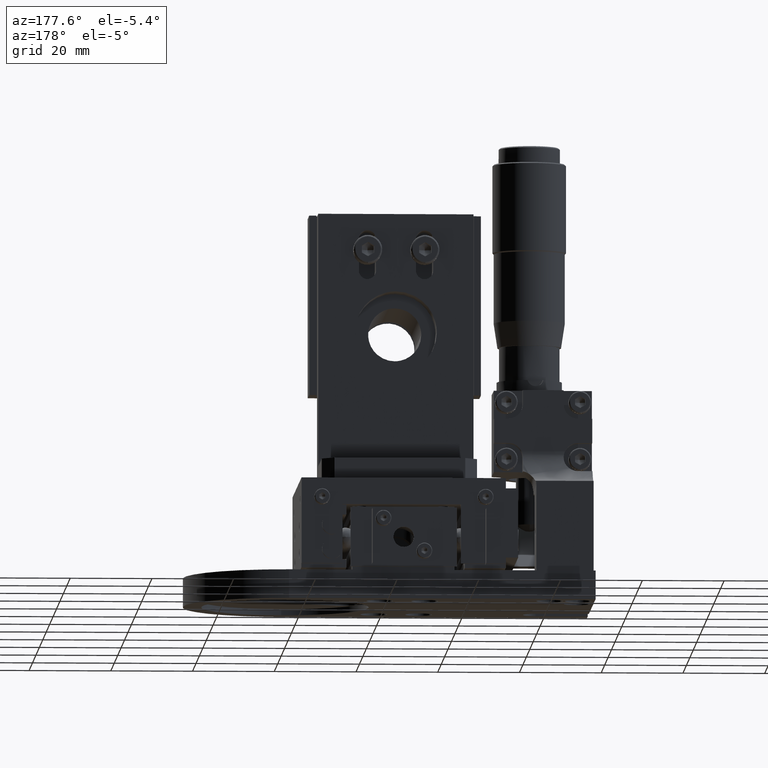
[diagram: clean part render]
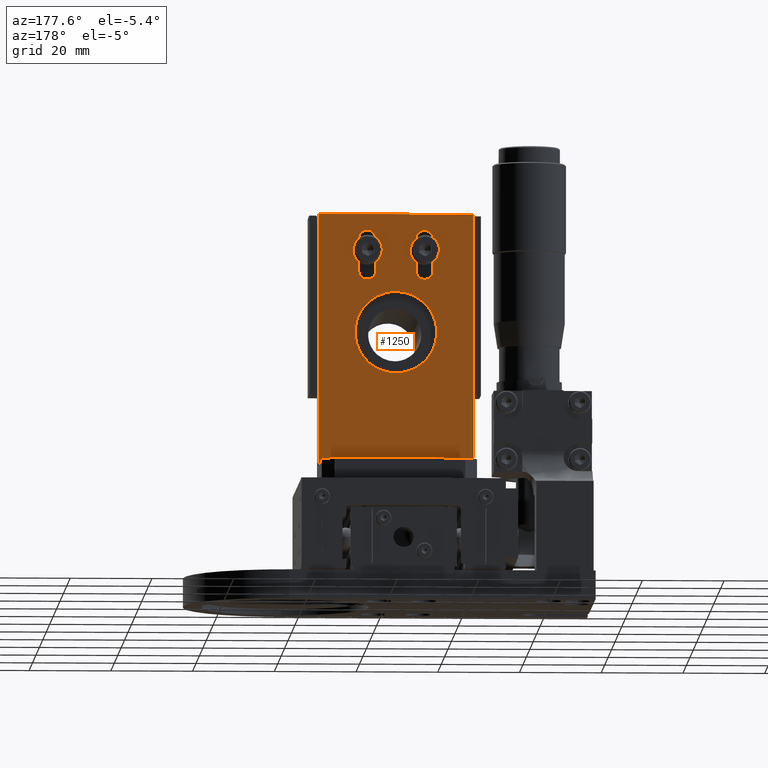
[diagram: same view with one face highlighted and labeled with its STEP entity id]
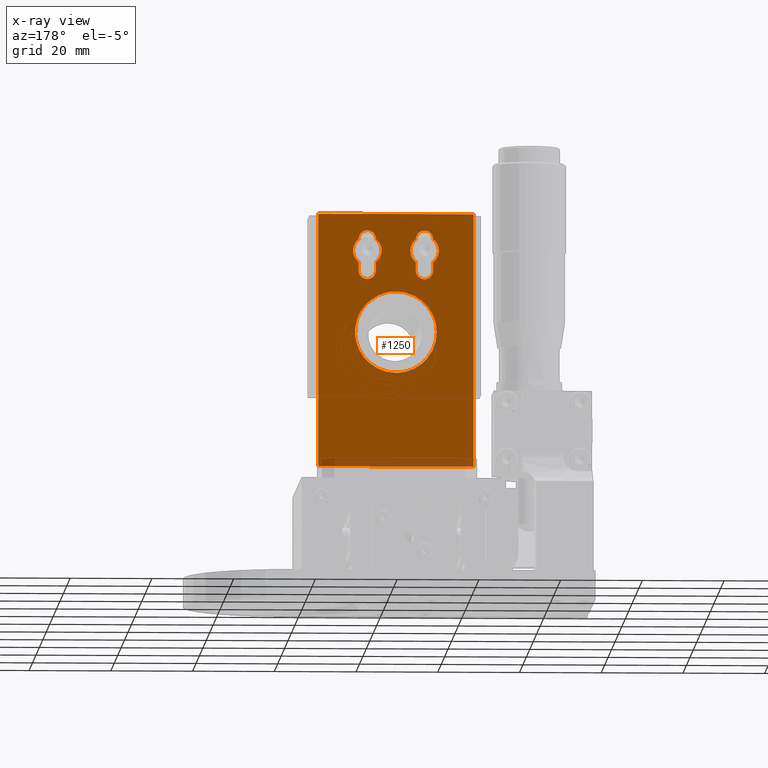
[diagram: x-ray of the same camera — body ghosted, the highlighted face saturated]
A machine part, auxiliary view. The second image highlights one B-rep face of the part: STEP entity #1250.
The next image is the same camera in x-ray: the body ghosted, the highlighted face saturated — about 4% of this face is hidden behind the body in this view.
In plain terms, the highlighted face is a freeform B-spline surface patch.
Its self-contained STEP definition (entity closure, byte-faithful):
#10=FACE_BOUND('',#3227,.T.);
#11=FACE_BOUND('',#3228,.T.);
#12=FACE_BOUND('',#3229,.T.);
#147=B_SPLINE_SURFACE_WITH_KNOTS('',1,1,((#39274,#39275),(#39276,#39277)),
 .UNSPECIFIED.,.F.,.F.,.F.,(2,2),(2,2),(-41.9200801138667,3.92008011386633),
(-68.32,6.32000000000002),.UNSPECIFIED.);
#325=B_SPLINE_SURFACE_WITH_KNOTS('',1,1,((#43785,#43786),(#43787,#43788)),
 .UNSPECIFIED.,.F.,.F.,.F.,(2,2),(2,2),(-10.6180599118463,22.0221003158867),
(-34.3179797979799,48.7220202020201),.UNSPECIFIED.);
#326=B_SPLINE_SURFACE_WITH_KNOTS('',1,1,((#43789,#43790),(#43791,#43792)),
 .UNSPECIFIED.,.F.,.F.,.F.,(2,2),(2,2),(-34.3179797979798,48.7220202020202),
(-10.6180599118463,22.0221003158866),.UNSPECIFIED.);
#327=B_SPLINE_SURFACE_WITH_KNOTS('',1,1,((#43793,#43794),(#43795,#43796)),
 .UNSPECIFIED.,.F.,.F.,.F.,(2,2),(2,2),(-3.92568995649168,41.9256899564918),
(-0.850533545259537,7.85053354525956),.UNSPECIFIED.);
#330=B_SPLINE_SURFACE_WITH_KNOTS('',1,1,((#43841,#43842),(#43843,#43844)),
 .UNSPECIFIED.,.F.,.F.,.F.,(2,2),(2,2),(-3.93630845337147,41.9383106305706),
(-2.4503330599347,25.4483282066864),.UNSPECIFIED.);
#332=B_SPLINE_SURFACE_WITH_KNOTS('',1,1,((#43867,#43868),(#43869,#43870)),
 .UNSPECIFIED.,.F.,.F.,.F.,(2,2),(2,2),(-7.82008011386639,0.820080113866541),
(-0.900000000000111,8.70000000000003),.UNSPECIFIED.);
#333=B_SPLINE_SURFACE_WITH_KNOTS('',1,1,((#43889,#43890),(#43891,#43892)),
 .UNSPECIFIED.,.F.,.F.,.F.,(2,2),(2,2),(-7.82008011386654,0.820080113868066),
(-0.900000000000017,8.7),.UNSPECIFIED.);
#334=B_SPLINE_SURFACE_WITH_KNOTS('',1,1,((#43911,#43912),(#43913,#43914)),
 .UNSPECIFIED.,.F.,.F.,.F.,(2,2),(2,2),(-7.82008011386637,0.820080113866322),
(-0.900000000000111,8.70000000000003),.UNSPECIFIED.);
#335=B_SPLINE_SURFACE_WITH_KNOTS('',1,1,((#43933,#43934),(#43935,#43936)),
 .UNSPECIFIED.,.F.,.F.,.F.,(2,2),(2,2),(-7.82008011386627,0.820080113866298),
(-0.900000000000027,8.70000000000011),.UNSPECIFIED.);
#1250=ADVANCED_FACE('',(#2238,#10,#11,#12),#147,.T.);
#2238=FACE_OUTER_BOUND('',#3226,.T.);
#3226=EDGE_LOOP('',(#4597,#4598,#4599,#4600));
#3227=EDGE_LOOP('',(#4601,#4602,#4603));
#3228=EDGE_LOOP('',(#4604,#4605,#4606,#4607,#4608,#4609,#4610,#4611,#4612,
#4613));
#3229=EDGE_LOOP('',(#4614,#4615,#4616,#4617,#4618,#4619,#4620,#4621,#4622,
#4623));
#4597=ORIENTED_EDGE('',*,*,#25090,.T.);
#4598=ORIENTED_EDGE('',*,*,#25091,.T.);
#4599=ORIENTED_EDGE('',*,*,#25092,.T.);
#4600=ORIENTED_EDGE('',*,*,#25093,.T.);
#4601=ORIENTED_EDGE('',*,*,#25094,.T.);
#4602=ORIENTED_EDGE('',*,*,#25095,.T.);
#4603=ORIENTED_EDGE('',*,*,#25096,.T.);
#4604=ORIENTED_EDGE('',*,*,#25097,.T.);
#4605=ORIENTED_EDGE('',*,*,#25083,.F.);
#4606=ORIENTED_EDGE('',*,*,#25086,.F.);
#4607=ORIENTED_EDGE('',*,*,#25098,.T.);
#4608=ORIENTED_EDGE('',*,*,#25099,.T.);
#4609=ORIENTED_EDGE('',*,*,#25100,.T.);
#4610=ORIENTED_EDGE('',*,*,#25089,.F.);
#4611=ORIENTED_EDGE('',*,*,#25084,.F.);
#4612=ORIENTED_EDGE('',*,*,#25101,.T.);
#4613=ORIENTED_EDGE('',*,*,#25102,.T.);
#4614=ORIENTED_EDGE('',*,*,#25103,.T.);
#4615=ORIENTED_EDGE('',*,*,#25104,.T.);
#4616=ORIENTED_EDGE('',*,*,#25105,.T.);
#4617=ORIENTED_EDGE('',*,*,#25106,.T.);
#4618=ORIENTED_EDGE('',*,*,#25107,.T.);
#4619=ORIENTED_EDGE('',*,*,#25108,.T.);
#4620=ORIENTED_EDGE('',*,*,#25109,.T.);
#4621=ORIENTED_EDGE('',*,*,#25110,.T.);
#4622=ORIENTED_EDGE('',*,*,#25111,.T.);
#4623=ORIENTED_EDGE('',*,*,#25112,.T.);
#9703=(
BOUNDED_CURVE()
B_SPLINE_CURVE(2,(#47023,#47024,#47025),.UNSPECIFIED.,.F.,.F.)
B_SPLINE_CURVE_WITH_KNOTS((3,3),(-3.24609266573333,0.),.UNSPECIFIED.)
CURVE()
GEOMETRIC_REPRESENTATION_ITEM()
RATIONAL_B_SPLINE_CURVE((1.,0.894391449214606,1.))
REPRESENTATION_ITEM('')
);
#9704=(
BOUNDED_CURVE()
B_SPLINE_CURVE(2,(#47030,#47031,#47032),.UNSPECIFIED.,.F.,.F.)
B_SPLINE_CURVE_WITH_KNOTS((3,3),(-3.24497379321346,0.),.UNSPECIFIED.)
CURVE()
GEOMETRIC_REPRESENTATION_ITEM()
RATIONAL_B_SPLINE_CURVE((1.,0.89446293135699,1.))
REPRESENTATION_ITEM('')
);
#9705=(
BOUNDED_CURVE()
B_SPLINE_CURVE(2,(#47039,#47040,#47041),.UNSPECIFIED.,.F.,.F.)
B_SPLINE_CURVE_WITH_KNOTS((3,3),(-6.49218533146671,-3.24609266573333),
 .UNSPECIFIED.)
CURVE()
GEOMETRIC_REPRESENTATION_ITEM()
RATIONAL_B_SPLINE_CURVE((1.,0.894391449214606,1.))
REPRESENTATION_ITEM('')
);
#9708=(
BOUNDED_CURVE()
B_SPLINE_CURVE(2,(#47058,#47059,#47060),.UNSPECIFIED.,.F.,.F.)
B_SPLINE_CURVE_WITH_KNOTS((3,3),(-3.24497379321351,0.),.UNSPECIFIED.)
CURVE()
GEOMETRIC_REPRESENTATION_ITEM()
RATIONAL_B_SPLINE_CURVE((1.,0.894462931356989,1.))
REPRESENTATION_ITEM('')
);
#9709=(
BOUNDED_CURVE()
B_SPLINE_CURVE(2,(#47081,#47082,#47083,#47084,#47085),.UNSPECIFIED.,.F.,
 .F.)
B_SPLINE_CURVE_WITH_KNOTS((3,2,3),(31.415926535898,47.1238898038469,62.8318530717959),
 .UNSPECIFIED.)
CURVE()
GEOMETRIC_REPRESENTATION_ITEM()
RATIONAL_B_SPLINE_CURVE((1.,0.707106781186548,1.,0.707106781186548,1.))
REPRESENTATION_ITEM('')
);
#9710=(
BOUNDED_CURVE()
B_SPLINE_CURVE(2,(#47086,#47087,#47088,#47089,#47090),.UNSPECIFIED.,.F.,
 .F.)
B_SPLINE_CURVE_WITH_KNOTS((3,2,3),(31.415926535898,47.1238898038469,62.8318530717959),
 .UNSPECIFIED.)
CURVE()
GEOMETRIC_REPRESENTATION_ITEM()
RATIONAL_B_SPLINE_CURVE((1.,0.707106781186548,1.,0.707106781186548,1.))
REPRESENTATION_ITEM('')
);
#9711=(
BOUNDED_CURVE()
B_SPLINE_CURVE(2,(#47091,#47092,#47093),.UNSPECIFIED.,.F.,.F.)
B_SPLINE_CURVE_WITH_KNOTS((3,3),(0.,15.707963267949),.UNSPECIFIED.)
CURVE()
GEOMETRIC_REPRESENTATION_ITEM()
RATIONAL_B_SPLINE_CURVE((1.,0.707106781186547,1.))
REPRESENTATION_ITEM('')
);
#9712=(
BOUNDED_CURVE()
B_SPLINE_CURVE(2,(#47094,#47095,#47096),.UNSPECIFIED.,.F.,.F.)
B_SPLINE_CURVE_WITH_KNOTS((3,3),(0.,15.707963267949),.UNSPECIFIED.)
CURVE()
GEOMETRIC_REPRESENTATION_ITEM()
RATIONAL_B_SPLINE_CURVE((1.,0.707106781186548,1.))
REPRESENTATION_ITEM('')
);
#9713=(
BOUNDED_CURVE()
B_SPLINE_CURVE(2,(#47097,#47098,#47099),.UNSPECIFIED.,.F.,.F.)
B_SPLINE_CURVE_WITH_KNOTS((3,3),(15.707963267949,31.415926535898),
 .UNSPECIFIED.)
CURVE()
GEOMETRIC_REPRESENTATION_ITEM()
RATIONAL_B_SPLINE_CURVE((1.,0.707106781186548,1.))
REPRESENTATION_ITEM('')
);
#9714=(
BOUNDED_CURVE()
B_SPLINE_CURVE(2,(#47100,#47101,#47102),.UNSPECIFIED.,.F.,.F.)
B_SPLINE_CURVE_WITH_KNOTS((3,3),(15.707963267949,31.415926535898),
 .UNSPECIFIED.)
CURVE()
GEOMETRIC_REPRESENTATION_ITEM()
RATIONAL_B_SPLINE_CURVE((1.,0.707106781186548,1.))
REPRESENTATION_ITEM('')
);
#9715=(
BOUNDED_CURVE()
B_SPLINE_CURVE(2,(#47107,#47108,#47109),.UNSPECIFIED.,.F.,.F.)
B_SPLINE_CURVE_WITH_KNOTS((3,3),(-3.24609266573333,0.),.UNSPECIFIED.)
CURVE()
GEOMETRIC_REPRESENTATION_ITEM()
RATIONAL_B_SPLINE_CURVE((1.,0.894391496913535,1.))
REPRESENTATION_ITEM('')
);
#9716=(
BOUNDED_CURVE()
B_SPLINE_CURVE(2,(#47110,#47111,#47112),.UNSPECIFIED.,.F.,.F.)
B_SPLINE_CURVE_WITH_KNOTS((3,3),(-6.49218533146671,-3.24609266573333),
 .UNSPECIFIED.)
CURVE()
GEOMETRIC_REPRESENTATION_ITEM()
RATIONAL_B_SPLINE_CURVE((1.,0.894391496913527,1.))
REPRESENTATION_ITEM('')
);
#9717=(
BOUNDED_CURVE()
B_SPLINE_CURVE(2,(#47117,#47118,#47119,#47120,#47121),.UNSPECIFIED.,.F.,
 .F.)
B_SPLINE_CURVE_WITH_KNOTS((3,2,3),(0.,3.29867228626928,6.59734457253857),
 .UNSPECIFIED.)
CURVE()
GEOMETRIC_REPRESENTATION_ITEM()
RATIONAL_B_SPLINE_CURVE((1.,0.707106781186548,1.,0.707106781186548,1.))
REPRESENTATION_ITEM('')
);
#9718=(
BOUNDED_CURVE()
B_SPLINE_CURVE(2,(#47122,#47123,#47124,#47125,#47126),.UNSPECIFIED.,.F.,
 .F.)
B_SPLINE_CURVE_WITH_KNOTS((3,2,3),(0.,3.29867228626928,6.59734457253857),
 .UNSPECIFIED.)
CURVE()
GEOMETRIC_REPRESENTATION_ITEM()
RATIONAL_B_SPLINE_CURVE((1.,0.707106781186548,1.,0.707106781186548,1.))
REPRESENTATION_ITEM('')
);
#9719=(
BOUNDED_CURVE()
B_SPLINE_CURVE(2,(#47131,#47132,#47133),.UNSPECIFIED.,.F.,.F.)
B_SPLINE_CURVE_WITH_KNOTS((3,3),(-3.24497379321351,0.),.UNSPECIFIED.)
CURVE()
GEOMETRIC_REPRESENTATION_ITEM()
RATIONAL_B_SPLINE_CURVE((1.,0.894463026693948,1.))
REPRESENTATION_ITEM('')
);
#9720=(
BOUNDED_CURVE()
B_SPLINE_CURVE(2,(#47134,#47135,#47136),.UNSPECIFIED.,.F.,.F.)
B_SPLINE_CURVE_WITH_KNOTS((3,3),(-3.24497379321346,0.),.UNSPECIFIED.)
CURVE()
GEOMETRIC_REPRESENTATION_ITEM()
RATIONAL_B_SPLINE_CURVE((1.,0.894462931357033,1.))
REPRESENTATION_ITEM('')
);
#9721=(
BOUNDED_CURVE()
B_SPLINE_CURVE(2,(#47141,#47142,#47143,#47144,#47145),.UNSPECIFIED.,.F.,
 .F.)
B_SPLINE_CURVE_WITH_KNOTS((3,2,3),(0.,3.29867228626928,6.59734457253857),
 .UNSPECIFIED.)
CURVE()
GEOMETRIC_REPRESENTATION_ITEM()
RATIONAL_B_SPLINE_CURVE((1.,0.707106781186549,1.,0.707106781186549,1.))
REPRESENTATION_ITEM('')
);
#9722=(
BOUNDED_CURVE()
B_SPLINE_CURVE(2,(#47146,#47147,#47148,#47149,#47150),.UNSPECIFIED.,.F.,
 .F.)
B_SPLINE_CURVE_WITH_KNOTS((3,2,3),(0.,3.29867228626928,6.59734457253857),
 .UNSPECIFIED.)
CURVE()
GEOMETRIC_REPRESENTATION_ITEM()
RATIONAL_B_SPLINE_CURVE((1.,0.707106781186548,1.,0.707106781186548,1.))
REPRESENTATION_ITEM('')
);
#9723=(
BOUNDED_CURVE()
B_SPLINE_CURVE(2,(#47155,#47156,#47157),.UNSPECIFIED.,.F.,.F.)
B_SPLINE_CURVE_WITH_KNOTS((3,3),(0.,3.24609266579985),.UNSPECIFIED.)
CURVE()
GEOMETRIC_REPRESENTATION_ITEM()
RATIONAL_B_SPLINE_CURVE((1.,0.894391449210367,1.))
REPRESENTATION_ITEM('')
);
#9724=(
BOUNDED_CURVE()
B_SPLINE_CURVE(2,(#47158,#47159,#47160),.UNSPECIFIED.,.F.,.F.)
B_SPLINE_CURVE_WITH_KNOTS((3,3),(0.,3.24609266579985),.UNSPECIFIED.)
CURVE()
GEOMETRIC_REPRESENTATION_ITEM()
RATIONAL_B_SPLINE_CURVE((1.,0.894391449210327,1.))
REPRESENTATION_ITEM('')
);
#9725=(
BOUNDED_CURVE()
B_SPLINE_CURVE(2,(#47161,#47162,#47163),.UNSPECIFIED.,.F.,.F.)
B_SPLINE_CURVE_WITH_KNOTS((3,3),(0.,3.24609266579985),.UNSPECIFIED.)
CURVE()
GEOMETRIC_REPRESENTATION_ITEM()
RATIONAL_B_SPLINE_CURVE((1.,0.894391449210317,1.))
REPRESENTATION_ITEM('')
);
#9726=(
BOUNDED_CURVE()
B_SPLINE_CURVE(2,(#47164,#47165,#47166),.UNSPECIFIED.,.F.,.F.)
B_SPLINE_CURVE_WITH_KNOTS((3,3),(0.,3.24609266579985),.UNSPECIFIED.)
CURVE()
GEOMETRIC_REPRESENTATION_ITEM()
RATIONAL_B_SPLINE_CURVE((1.,0.894391449210327,1.))
REPRESENTATION_ITEM('')
);
#9727=(
BOUNDED_CURVE()
B_SPLINE_CURVE(2,(#47171,#47172,#47173,#47174,#47175),.UNSPECIFIED.,.F.,
 .F.)
B_SPLINE_CURVE_WITH_KNOTS((3,2,3),(0.,3.29867228626928,6.59734457253857),
 .UNSPECIFIED.)
CURVE()
GEOMETRIC_REPRESENTATION_ITEM()
RATIONAL_B_SPLINE_CURVE((1.,0.70710678118655,1.,0.70710678118655,1.))
REPRESENTATION_ITEM('')
);
#9728=(
BOUNDED_CURVE()
B_SPLINE_CURVE(2,(#47176,#47177,#47178,#47179,#47180),.UNSPECIFIED.,.F.,
 .F.)
B_SPLINE_CURVE_WITH_KNOTS((3,2,3),(0.,3.29867149980443,6.59734457253857),
 .UNSPECIFIED.)
CURVE()
GEOMETRIC_REPRESENTATION_ITEM()
RATIONAL_B_SPLINE_CURVE((1.,0.707107019605091,1.,0.707106781186548,1.))
REPRESENTATION_ITEM('')
);
#9729=(
BOUNDED_CURVE()
B_SPLINE_CURVE(2,(#47185,#47186,#47187),.UNSPECIFIED.,.F.,.F.)
B_SPLINE_CURVE_WITH_KNOTS((3,3),(0.,3.24497379314617),.UNSPECIFIED.)
CURVE()
GEOMETRIC_REPRESENTATION_ITEM()
RATIONAL_B_SPLINE_CURVE((1.,0.894462931361333,1.))
REPRESENTATION_ITEM('')
);
#9730=(
BOUNDED_CURVE()
B_SPLINE_CURVE(2,(#47188,#47189,#47190),.UNSPECIFIED.,.F.,.F.)
B_SPLINE_CURVE_WITH_KNOTS((3,3),(0.,3.24497379314617),.UNSPECIFIED.)
CURVE()
GEOMETRIC_REPRESENTATION_ITEM()
RATIONAL_B_SPLINE_CURVE((1.,0.894462931361331,1.))
REPRESENTATION_ITEM('')
);
#9731=(
BOUNDED_CURVE()
B_SPLINE_CURVE(2,(#47191,#47192,#47193),.UNSPECIFIED.,.F.,.F.)
B_SPLINE_CURVE_WITH_KNOTS((3,3),(3.24497379314617,6.48994758629234),
 .UNSPECIFIED.)
CURVE()
GEOMETRIC_REPRESENTATION_ITEM()
RATIONAL_B_SPLINE_CURVE((1.,0.894462931361338,1.))
REPRESENTATION_ITEM('')
);
#9732=(
BOUNDED_CURVE()
B_SPLINE_CURVE(2,(#47194,#47195,#47196),.UNSPECIFIED.,.F.,.F.)
B_SPLINE_CURVE_WITH_KNOTS((3,3),(3.24497379314617,6.48994758629234),
 .UNSPECIFIED.)
CURVE()
GEOMETRIC_REPRESENTATION_ITEM()
RATIONAL_B_SPLINE_CURVE((1.,0.894463026698248,1.))
REPRESENTATION_ITEM('')
);
#9733=(
BOUNDED_CURVE()
B_SPLINE_CURVE(2,(#47201,#47202,#47203,#47204,#47205),.UNSPECIFIED.,.F.,
 .F.)
B_SPLINE_CURVE_WITH_KNOTS((3,2,3),(0.,3.29867228626928,6.59734457253857),
 .UNSPECIFIED.)
CURVE()
GEOMETRIC_REPRESENTATION_ITEM()
RATIONAL_B_SPLINE_CURVE((1.,0.707106781186544,1.,0.707106781186544,1.))
REPRESENTATION_ITEM('')
);
#9734=(
BOUNDED_CURVE()
B_SPLINE_CURVE(2,(#47206,#47207,#47208,#47209,#47210),.UNSPECIFIED.,.F.,
 .F.)
B_SPLINE_CURVE_WITH_KNOTS((3,2,3),(0.,3.29867267950171,6.59734457253857),
 .UNSPECIFIED.)
CURVE()
GEOMETRIC_REPRESENTATION_ITEM()
RATIONAL_B_SPLINE_CURVE((1.,0.707106781186548,1.,0.707106900395836,1.))
REPRESENTATION_ITEM('')
);
#11848=PCURVE('',#35735,#17138);
#11850=PCURVE('',#35735,#17140);
#11852=PCURVE('',#35736,#17142);
#11857=PCURVE('',#35736,#17147);
#11859=PCURVE('',#147,#17149);
#11860=PCURVE('',#147,#17150);
#11861=PCURVE('',#147,#17151);
#11862=PCURVE('',#147,#17152);
#11863=PCURVE('',#147,#17153);
#11864=PCURVE('',#147,#17154);
#11865=PCURVE('',#147,#17155);
#11866=PCURVE('',#147,#17156);
#11867=PCURVE('',#147,#17157);
#11868=PCURVE('',#147,#17158);
#11869=PCURVE('',#147,#17159);
#11870=PCURVE('',#147,#17160);
#11871=PCURVE('',#147,#17161);
#11872=PCURVE('',#147,#17162);
#11873=PCURVE('',#147,#17163);
#11874=PCURVE('',#147,#17164);
#11875=PCURVE('',#147,#17165);
#11876=PCURVE('',#147,#17166);
#11877=PCURVE('',#147,#17167);
#11878=PCURVE('',#147,#17168);
#11879=PCURVE('',#147,#17169);
#11880=PCURVE('',#147,#17170);
#11881=PCURVE('',#147,#17171);
#11882=PCURVE('',#147,#17172);
#11883=PCURVE('',#147,#17173);
#11884=PCURVE('',#147,#17174);
#11885=PCURVE('',#147,#17175);
#11917=PCURVE('',#35741,#17207);
#11919=PCURVE('',#35741,#17209);
#11921=PCURVE('',#35742,#17211);
#11926=PCURVE('',#35742,#17216);
#14096=PCURVE('',#325,#19386);
#14107=PCURVE('',#326,#19397);
#14110=PCURVE('',#327,#19400);
#14114=PCURVE('',#35953,#19404);
#14118=PCURVE('',#35954,#19408);
#14119=PCURVE('',#35954,#19409);
#14135=PCURVE('',#330,#19425);
#14154=PCURVE('',#35955,#19444);
#14158=PCURVE('',#332,#19448);
#14160=PCURVE('',#332,#19450);
#14164=PCURVE('',#35956,#19454);
#14168=PCURVE('',#333,#19458);
#14172=PCURVE('',#333,#19462);
#14176=PCURVE('',#35957,#19466);
#14180=PCURVE('',#334,#19470);
#14184=PCURVE('',#334,#19474);
#14188=PCURVE('',#35958,#19478);
#14192=PCURVE('',#335,#19482);
#14194=PCURVE('',#335,#19484);
#17138=DEFINITIONAL_REPRESENTATION('',(#28035),#78139);
#17140=DEFINITIONAL_REPRESENTATION('',(#28037),#78139);
#17142=DEFINITIONAL_REPRESENTATION('',(#28040),#78139);
#17147=DEFINITIONAL_REPRESENTATION('',(#28045),#78139);
#17149=DEFINITIONAL_REPRESENTATION('',(#28048),#78139);
#17150=DEFINITIONAL_REPRESENTATION('',(#28050),#78139);
#17151=DEFINITIONAL_REPRESENTATION('',(#28052),#78139);
#17152=DEFINITIONAL_REPRESENTATION('',(#28054),#78139);
#17153=DEFINITIONAL_REPRESENTATION('',(#9710),#78139);
#17154=DEFINITIONAL_REPRESENTATION('',(#9712),#78139);
#17155=DEFINITIONAL_REPRESENTATION('',(#9714),#78139);
#17156=DEFINITIONAL_REPRESENTATION('',(#28056),#78139);
#17157=DEFINITIONAL_REPRESENTATION('',(#9715),#78139);
#17158=DEFINITIONAL_REPRESENTATION('',(#9716),#78139);
#17159=DEFINITIONAL_REPRESENTATION('',(#28058),#78139);
#17160=DEFINITIONAL_REPRESENTATION('',(#9718),#78139);
#17161=DEFINITIONAL_REPRESENTATION('',(#28060),#78139);
#17162=DEFINITIONAL_REPRESENTATION('',(#9719),#78139);
#17163=DEFINITIONAL_REPRESENTATION('',(#9720),#78139);
#17164=DEFINITIONAL_REPRESENTATION('',(#28062),#78139);
#17165=DEFINITIONAL_REPRESENTATION('',(#9722),#78139);
#17166=DEFINITIONAL_REPRESENTATION('',(#28064),#78139);
#17167=DEFINITIONAL_REPRESENTATION('',(#9724),#78139);
#17168=DEFINITIONAL_REPRESENTATION('',(#9726),#78139);
#17169=DEFINITIONAL_REPRESENTATION('',(#28066),#78139);
#17170=DEFINITIONAL_REPRESENTATION('',(#9728),#78139);
#17171=DEFINITIONAL_REPRESENTATION('',(#28068),#78139);
#17172=DEFINITIONAL_REPRESENTATION('',(#9730),#78139);
#17173=DEFINITIONAL_REPRESENTATION('',(#9732),#78139);
#17174=DEFINITIONAL_REPRESENTATION('',(#28070),#78139);
#17175=DEFINITIONAL_REPRESENTATION('',(#9734),#78139);
#17207=DEFINITIONAL_REPRESENTATION('',(#28103),#78139);
#17209=DEFINITIONAL_REPRESENTATION('',(#28105),#78139);
#17211=DEFINITIONAL_REPRESENTATION('',(#28108),#78139);
#17216=DEFINITIONAL_REPRESENTATION('',(#28113),#78139);
#19386=DEFINITIONAL_REPRESENTATION('',(#30703),#78139);
#19397=DEFINITIONAL_REPRESENTATION('',(#30722),#78139);
#19400=DEFINITIONAL_REPRESENTATION('',(#30726),#78139);
#19404=DEFINITIONAL_REPRESENTATION('',(#30732),#78139);
#19408=DEFINITIONAL_REPRESENTATION('',(#30737),#78139);
#19409=DEFINITIONAL_REPRESENTATION('',(#30738),#78139);
#19425=DEFINITIONAL_REPRESENTATION('',(#30759),#78139);
#19444=DEFINITIONAL_REPRESENTATION('',(#30767),#78139);
#19448=DEFINITIONAL_REPRESENTATION('',(#30773),#78139);
#19450=DEFINITIONAL_REPRESENTATION('',(#30775),#78139);
#19454=DEFINITIONAL_REPRESENTATION('',(#30781),#78139);
#19458=DEFINITIONAL_REPRESENTATION('',(#30785),#78139);
#19462=DEFINITIONAL_REPRESENTATION('',(#30790),#78139);
#19466=DEFINITIONAL_REPRESENTATION('',(#30796),#78139);
#19470=DEFINITIONAL_REPRESENTATION('',(#30802),#78139);
#19474=DEFINITIONAL_REPRESENTATION('',(#30807),#78139);
#19478=DEFINITIONAL_REPRESENTATION('',(#30813),#78139);
#19482=DEFINITIONAL_REPRESENTATION('',(#30817),#78139);
#19484=DEFINITIONAL_REPRESENTATION('',(#30819),#78139);
#22304=SURFACE_CURVE('',#9703,(#11848,#11867),.PCURVE_S1.);
#22305=SURFACE_CURVE('',#9704,(#11850,#11873),.PCURVE_S1.);
#22307=SURFACE_CURVE('',#9705,(#11852,#11868),.PCURVE_S1.);
#22310=SURFACE_CURVE('',#9708,(#11857,#11872),.PCURVE_S1.);
#22311=SURFACE_CURVE('',#28047,(#11859,#14096),.PCURVE_S1.);
#22312=SURFACE_CURVE('',#28049,(#11860,#14135),.PCURVE_S1.);
#22313=SURFACE_CURVE('',#28051,(#11861,#14107),.PCURVE_S1.);
#22314=SURFACE_CURVE('',#28053,(#11862,#14110),.PCURVE_S1.);
#22315=SURFACE_CURVE('',#9709,(#11863,#14118),.PCURVE_S1.);
#22316=SURFACE_CURVE('',#9711,(#11864,#14114),.PCURVE_S1.);
#22317=SURFACE_CURVE('',#9713,(#11865,#14119),.PCURVE_S1.);
#22318=SURFACE_CURVE('',#28055,(#11866,#14184),.PCURVE_S1.);
#22319=SURFACE_CURVE('',#28057,(#11869,#14180),.PCURVE_S1.);
#22320=SURFACE_CURVE('',#9717,(#11870,#14188),.PCURVE_S1.);
#22321=SURFACE_CURVE('',#28059,(#11871,#14194),.PCURVE_S1.);
#22322=SURFACE_CURVE('',#28061,(#11874,#14192),.PCURVE_S1.);
#22323=SURFACE_CURVE('',#9721,(#11875,#14176),.PCURVE_S1.);
#22324=SURFACE_CURVE('',#28063,(#11876,#14172),.PCURVE_S1.);
#22325=SURFACE_CURVE('',#9723,(#11877,#11926),.PCURVE_S1.);
#22326=SURFACE_CURVE('',#9725,(#11878,#11919),.PCURVE_S1.);
#22327=SURFACE_CURVE('',#28065,(#11879,#14168),.PCURVE_S1.);
#22328=SURFACE_CURVE('',#9727,(#11880,#14154),.PCURVE_S1.);
#22329=SURFACE_CURVE('',#28067,(#11881,#14160),.PCURVE_S1.);
#22330=SURFACE_CURVE('',#9729,(#11882,#11917),.PCURVE_S1.);
#22331=SURFACE_CURVE('',#9731,(#11883,#11921),.PCURVE_S1.);
#22332=SURFACE_CURVE('',#28069,(#11884,#14158),.PCURVE_S1.);
#22333=SURFACE_CURVE('',#9733,(#11885,#14164),.PCURVE_S1.);
#25083=EDGE_CURVE('',#33909,#33897,#22304,.T.);
#25084=EDGE_CURVE('',#33900,#33910,#22305,.T.);
#25086=EDGE_CURVE('',#33898,#33909,#22307,.T.);
#25089=EDGE_CURVE('',#33910,#33899,#22310,.T.);
#25090=EDGE_CURVE('',#33913,#33914,#22311,.T.);
#25091=EDGE_CURVE('',#33914,#33915,#22312,.T.);
#25092=EDGE_CURVE('',#33915,#33916,#22313,.T.);
#25093=EDGE_CURVE('',#33916,#33913,#22314,.T.);
#25094=EDGE_CURVE('',#33918,#33917,#22315,.T.);
#25095=EDGE_CURVE('',#33917,#34780,#22316,.T.);
#25096=EDGE_CURVE('',#34780,#33918,#22317,.T.);
#25097=EDGE_CURVE('',#33922,#33897,#22318,.T.);
#25098=EDGE_CURVE('',#33898,#33919,#22319,.T.);
#25099=EDGE_CURVE('',#33919,#33920,#22320,.T.);
#25100=EDGE_CURVE('',#33920,#33899,#22321,.T.);
#25101=EDGE_CURVE('',#33900,#33921,#22322,.T.);
#25102=EDGE_CURVE('',#33921,#33922,#22323,.T.);
#25103=EDGE_CURVE('',#33931,#33923,#22324,.T.);
#25104=EDGE_CURVE('',#33923,#33924,#22325,.T.);
#25105=EDGE_CURVE('',#33924,#33925,#22326,.T.);
#25106=EDGE_CURVE('',#33925,#33926,#22327,.T.);
#25107=EDGE_CURVE('',#33926,#33927,#22328,.T.);
#25108=EDGE_CURVE('',#33927,#33928,#22329,.T.);
#25109=EDGE_CURVE('',#33928,#33948,#22330,.T.);
#25110=EDGE_CURVE('',#33948,#33929,#22331,.T.);
#25111=EDGE_CURVE('',#33929,#33930,#22332,.T.);
#25112=EDGE_CURVE('',#33930,#33931,#22333,.T.);
#28035=B_SPLINE_CURVE_WITH_KNOTS('',1,(#47026,#47027),.UNSPECIFIED.,.F.,
 .F.,(2,2),(-3.24609266573333,0.),.UNSPECIFIED.);
#28037=B_SPLINE_CURVE_WITH_KNOTS('',1,(#47033,#47034),.UNSPECIFIED.,.F.,
 .F.,(2,2),(-3.24497379321346,0.),.UNSPECIFIED.);
#28040=B_SPLINE_CURVE_WITH_KNOTS('',1,(#47042,#47043),.UNSPECIFIED.,.F.,
 .F.,(2,2),(-6.49218533146671,-3.24609266573333),.UNSPECIFIED.);
#28045=B_SPLINE_CURVE_WITH_KNOTS('',1,(#47061,#47062),.UNSPECIFIED.,.F.,
 .F.,(2,2),(-3.24497379321351,0.),.UNSPECIFIED.);
#28047=B_SPLINE_CURVE_WITH_KNOTS('',1,(#47065,#47066),.UNSPECIFIED.,.F.,
 .F.,(2,2),(0.,61.9999999999999),.UNSPECIFIED.);
#28048=B_SPLINE_CURVE_WITH_KNOTS('',1,(#47067,#47068),.UNSPECIFIED.,.F.,
 .F.,(2,2),(0.,61.9999999999999),.UNSPECIFIED.);
#28049=B_SPLINE_CURVE_WITH_KNOTS('',1,(#47069,#47070),.UNSPECIFIED.,.F.,
 .F.,(2,2),(-38.0000000000004,0.),.UNSPECIFIED.);
#28050=B_SPLINE_CURVE_WITH_KNOTS('',1,(#47071,#47072),.UNSPECIFIED.,.F.,
 .F.,(2,2),(-38.0000000000004,0.),.UNSPECIFIED.);
#28051=B_SPLINE_CURVE_WITH_KNOTS('',1,(#47073,#47074),.UNSPECIFIED.,.F.,
 .F.,(2,2),(0.,62.),.UNSPECIFIED.);
#28052=B_SPLINE_CURVE_WITH_KNOTS('',1,(#47075,#47076),.UNSPECIFIED.,.F.,
 .F.,(2,2),(0.,62.),.UNSPECIFIED.);
#28053=B_SPLINE_CURVE_WITH_KNOTS('',1,(#47077,#47078),.UNSPECIFIED.,.F.,
 .F.,(2,2),(0.,38.0000000000004),.UNSPECIFIED.);
#28054=B_SPLINE_CURVE_WITH_KNOTS('',1,(#47079,#47080),.UNSPECIFIED.,.F.,
 .F.,(2,2),(0.,38.0000000000004),.UNSPECIFIED.);
#28055=B_SPLINE_CURVE_WITH_KNOTS('',1,(#47103,#47104),.UNSPECIFIED.,.F.,
 .F.,(2,2),(0.,0.098385682608999),.UNSPECIFIED.);
#28056=B_SPLINE_CURVE_WITH_KNOTS('',1,(#47105,#47106),.UNSPECIFIED.,.F.,
 .F.,(2,2),(0.,0.098385682608999),.UNSPECIFIED.);
#28057=B_SPLINE_CURVE_WITH_KNOTS('',1,(#47113,#47114),.UNSPECIFIED.,.F.,
 .F.,(2,2),(0.,2.1009431056479),.UNSPECIFIED.);
#28058=B_SPLINE_CURVE_WITH_KNOTS('',1,(#47115,#47116),.UNSPECIFIED.,.F.,
 .F.,(2,2),(0.,2.1009431056479),.UNSPECIFIED.);
#28059=B_SPLINE_CURVE_WITH_KNOTS('',1,(#47127,#47128),.UNSPECIFIED.,.F.,
 .F.,(2,2),(0.,2.1016144291656),.UNSPECIFIED.);
#28060=B_SPLINE_CURVE_WITH_KNOTS('',1,(#47129,#47130),.UNSPECIFIED.,.F.,
 .F.,(2,2),(0.,2.1016144291656),.UNSPECIFIED.);
#28061=B_SPLINE_CURVE_WITH_KNOTS('',1,(#47137,#47138),.UNSPECIFIED.,.F.,
 .F.,(2,2),(0.,0.0990570061266993),.UNSPECIFIED.);
#28062=B_SPLINE_CURVE_WITH_KNOTS('',1,(#47139,#47140),.UNSPECIFIED.,.F.,
 .F.,(2,2),(0.,0.0990570061266993),.UNSPECIFIED.);
#28063=B_SPLINE_CURVE_WITH_KNOTS('',1,(#47151,#47152),.UNSPECIFIED.,.F.,
 .F.,(2,2),(0.,2.1009431055875),.UNSPECIFIED.);
#28064=B_SPLINE_CURVE_WITH_KNOTS('',1,(#47153,#47154),.UNSPECIFIED.,.F.,
 .F.,(2,2),(0.,2.1009431055875),.UNSPECIFIED.);
#28065=B_SPLINE_CURVE_WITH_KNOTS('',1,(#47167,#47168),.UNSPECIFIED.,.F.,
 .F.,(2,2),(0.,0.0983856825891003),.UNSPECIFIED.);
#28066=B_SPLINE_CURVE_WITH_KNOTS('',1,(#47169,#47170),.UNSPECIFIED.,.F.,
 .F.,(2,2),(0.,0.0983856825891003),.UNSPECIFIED.);
#28067=B_SPLINE_CURVE_WITH_KNOTS('',1,(#47181,#47182),.UNSPECIFIED.,.F.,
 .F.,(2,2),(0.,0.0990570061871985),.UNSPECIFIED.);
#28068=B_SPLINE_CURVE_WITH_KNOTS('',1,(#47183,#47184),.UNSPECIFIED.,.F.,
 .F.,(2,2),(0.,0.0990570061871985),.UNSPECIFIED.);
#28069=B_SPLINE_CURVE_WITH_KNOTS('',1,(#47197,#47198),.UNSPECIFIED.,.F.,
 .F.,(2,2),(0.,2.1016144291854),.UNSPECIFIED.);
#28070=B_SPLINE_CURVE_WITH_KNOTS('',1,(#47199,#47200),.UNSPECIFIED.,.F.,
 .F.,(2,2),(0.,2.1016144291854),.UNSPECIFIED.);
#28103=B_SPLINE_CURVE_WITH_KNOTS('',1,(#47375,#47376),.UNSPECIFIED.,.F.,
 .F.,(2,2),(0.,3.24497379314617),.UNSPECIFIED.);
#28105=B_SPLINE_CURVE_WITH_KNOTS('',1,(#47379,#47380),.UNSPECIFIED.,.F.,
 .F.,(2,2),(0.,3.24609266579985),.UNSPECIFIED.);
#28108=B_SPLINE_CURVE_WITH_KNOTS('',1,(#47385,#47386),.UNSPECIFIED.,.F.,
 .F.,(2,2),(3.24497379314617,6.48994758629234),.UNSPECIFIED.);
#28113=B_SPLINE_CURVE_WITH_KNOTS('',1,(#47401,#47402),.UNSPECIFIED.,.F.,
 .F.,(2,2),(0.,3.24609266579985),.UNSPECIFIED.);
#30703=B_SPLINE_CURVE_WITH_KNOTS('',1,(#57210,#57211),.UNSPECIFIED.,.F.,
 .F.,(2,2),(0.,61.9999999999999),.UNSPECIFIED.);
#30722=B_SPLINE_CURVE_WITH_KNOTS('',1,(#57248,#57249),.UNSPECIFIED.,.F.,
 .F.,(2,2),(0.,62.),.UNSPECIFIED.);
#30726=B_SPLINE_CURVE_WITH_KNOTS('',1,(#57256,#57257),.UNSPECIFIED.,.F.,
 .F.,(2,2),(0.,38.0000000000004),.UNSPECIFIED.);
#30732=B_SPLINE_CURVE_WITH_KNOTS('',1,(#57268,#57269),.UNSPECIFIED.,.F.,
 .F.,(2,2),(0.,15.707963267949),.UNSPECIFIED.);
#30737=B_SPLINE_CURVE_WITH_KNOTS('',1,(#57281,#57282),.UNSPECIFIED.,.F.,
 .F.,(2,2),(31.415926535898,62.8318530717959),.UNSPECIFIED.);
#30738=B_SPLINE_CURVE_WITH_KNOTS('',1,(#57283,#57284),.UNSPECIFIED.,.F.,
 .F.,(2,2),(15.707963267949,31.415926535898),.UNSPECIFIED.);
#30759=B_SPLINE_CURVE_WITH_KNOTS('',1,(#57333,#57334),.UNSPECIFIED.,.F.,
 .F.,(2,2),(-38.0000000000004,0.),.UNSPECIFIED.);
#30767=B_SPLINE_CURVE_WITH_KNOTS('',1,(#57453,#57454),.UNSPECIFIED.,.F.,
 .F.,(2,2),(0.,6.59734457253857),.UNSPECIFIED.);
#30773=B_SPLINE_CURVE_WITH_KNOTS('',1,(#57470,#57471),.UNSPECIFIED.,.F.,
 .F.,(2,2),(0.,2.1016144291854),.UNSPECIFIED.);
#30775=B_SPLINE_CURVE_WITH_KNOTS('',1,(#57474,#57475),.UNSPECIFIED.,.F.,
 .F.,(2,2),(0.,0.0990570061871985),.UNSPECIFIED.);
#30781=B_SPLINE_CURVE_WITH_KNOTS('',1,(#57486,#57487),.UNSPECIFIED.,.F.,
 .F.,(2,2),(0.,6.59734457253857),.UNSPECIFIED.);
#30785=B_SPLINE_CURVE_WITH_KNOTS('',1,(#57499,#57500),.UNSPECIFIED.,.F.,
 .F.,(2,2),(0.,0.0983856825891003),.UNSPECIFIED.);
#30790=B_SPLINE_CURVE_WITH_KNOTS('',1,(#57509,#57510),.UNSPECIFIED.,.F.,
 .F.,(2,2),(0.,2.1009431055875),.UNSPECIFIED.);
#30796=B_SPLINE_CURVE_WITH_KNOTS('',1,(#57521,#57522),.UNSPECIFIED.,.F.,
 .F.,(2,2),(0.,6.59734457253857),.UNSPECIFIED.);
#30802=B_SPLINE_CURVE_WITH_KNOTS('',1,(#57538,#57539),.UNSPECIFIED.,.F.,
 .F.,(2,2),(0.,2.1009431056479),.UNSPECIFIED.);
#30807=B_SPLINE_CURVE_WITH_KNOTS('',1,(#57548,#57549),.UNSPECIFIED.,.F.,
 .F.,(2,2),(0.,0.098385682608999),.UNSPECIFIED.);
#30813=B_SPLINE_CURVE_WITH_KNOTS('',1,(#57560,#57561),.UNSPECIFIED.,.F.,
 .F.,(2,2),(0.,6.59734457253857),.UNSPECIFIED.);
#30817=B_SPLINE_CURVE_WITH_KNOTS('',1,(#57573,#57574),.UNSPECIFIED.,.F.,
 .F.,(2,2),(0.,0.0990570061266993),.UNSPECIFIED.);
#30819=B_SPLINE_CURVE_WITH_KNOTS('',1,(#57577,#57578),.UNSPECIFIED.,.F.,
 .F.,(2,2),(0.,2.1016144291656),.UNSPECIFIED.);
#33897=VERTEX_POINT('',#45698);
#33898=VERTEX_POINT('',#45699);
#33899=VERTEX_POINT('',#45700);
#33900=VERTEX_POINT('',#45701);
#33909=VERTEX_POINT('',#45710);
#33910=VERTEX_POINT('',#45711);
#33913=VERTEX_POINT('',#45714);
#33914=VERTEX_POINT('',#45715);
#33915=VERTEX_POINT('',#45716);
#33916=VERTEX_POINT('',#45717);
#33917=VERTEX_POINT('',#45718);
#33918=VERTEX_POINT('',#45719);
#33919=VERTEX_POINT('',#45720);
#33920=VERTEX_POINT('',#45721);
#33921=VERTEX_POINT('',#45722);
#33922=VERTEX_POINT('',#45723);
#33923=VERTEX_POINT('',#45724);
#33924=VERTEX_POINT('',#45725);
#33925=VERTEX_POINT('',#45726);
#33926=VERTEX_POINT('',#45727);
#33927=VERTEX_POINT('',#45728);
#33928=VERTEX_POINT('',#45729);
#33929=VERTEX_POINT('',#45730);
#33930=VERTEX_POINT('',#45731);
#33931=VERTEX_POINT('',#45732);
#33948=VERTEX_POINT('',#45749);
#34780=VERTEX_POINT('',#46581);
#35735=(
BOUNDED_SURFACE()
B_SPLINE_SURFACE(2,1,((#39238,#39239),(#39240,#39241),(#39242,#39243),(#39244,
#39245),(#39246,#39247),(#39248,#39249),(#39250,#39251),(#39252,#39253),
(#39254,#39255)),.UNSPECIFIED.,.T.,.F.,.F.)
B_SPLINE_SURFACE_WITH_KNOTS((3,2,2,2,3),(2,2),(0.,1.5707963267949,3.14159265358979,
4.71238898038469,6.28318530717959),(0.,4.5713799129828),.UNSPECIFIED.)
GEOMETRIC_REPRESENTATION_ITEM()
RATIONAL_B_SPLINE_SURFACE(((1.,1.),(0.707106781186548,0.707106781186548),
(1.,1.),(0.707106781186548,0.707106781186548),(1.,1.),(0.707106781186548,
0.707106781186548),(1.,1.),(0.707106781186548,0.707106781186548),(1.,1.)))
REPRESENTATION_ITEM('')
SURFACE()
);
#35736=(
BOUNDED_SURFACE()
B_SPLINE_SURFACE(2,1,((#39256,#39257),(#39258,#39259),(#39260,#39261),(#39262,
#39263),(#39264,#39265),(#39266,#39267),(#39268,#39269),(#39270,#39271),
(#39272,#39273)),.UNSPECIFIED.,.T.,.F.,.F.)
B_SPLINE_SURFACE_WITH_KNOTS((3,2,2,2,3),(2,2),(0.,1.5707963267949,3.14159265358979,
4.71238898038469,6.28318530717959),(0.,4.5713799129828),.UNSPECIFIED.)
GEOMETRIC_REPRESENTATION_ITEM()
RATIONAL_B_SPLINE_SURFACE(((1.,1.),(0.707106781186548,0.707106781186548),
(1.,1.),(0.707106781186548,0.707106781186548),(1.,1.),(0.707106781186548,
0.707106781186548),(1.,1.),(0.707106781186548,0.707106781186548),(1.,1.)))
REPRESENTATION_ITEM('')
SURFACE()
);
#35741=(
BOUNDED_SURFACE()
B_SPLINE_SURFACE(2,1,((#39358,#39359),(#39360,#39361),(#39362,#39363),(#39364,
#39365),(#39366,#39367),(#39368,#39369),(#39370,#39371),(#39372,#39373),
(#39374,#39375)),.UNSPECIFIED.,.T.,.F.,.F.)
B_SPLINE_SURFACE_WITH_KNOTS((3,2,2,2,3),(2,2),(0.,1.5707963267949,3.14159265358979,
4.71238898038469,6.28318530717959),(0.,4.57137991297788),.UNSPECIFIED.)
GEOMETRIC_REPRESENTATION_ITEM()
RATIONAL_B_SPLINE_SURFACE(((1.,1.),(0.707106781186548,0.707106781186548),
(1.,1.),(0.707106781186548,0.707106781186548),(1.,1.),(0.707106781186548,
0.707106781186548),(1.,1.),(0.707106781186548,0.707106781186548),(1.,1.)))
REPRESENTATION_ITEM('')
SURFACE()
);
#35742=(
BOUNDED_SURFACE()
B_SPLINE_SURFACE(2,1,((#39376,#39377),(#39378,#39379),(#39380,#39381),(#39382,
#39383),(#39384,#39385),(#39386,#39387),(#39388,#39389),(#39390,#39391),
(#39392,#39393)),.UNSPECIFIED.,.T.,.F.,.F.)
B_SPLINE_SURFACE_WITH_KNOTS((3,2,2,2,3),(2,2),(0.,1.5707963267949,3.14159265358979,
4.71238898038469,6.28318530717959),(0.,4.57137991297788),.UNSPECIFIED.)
GEOMETRIC_REPRESENTATION_ITEM()
RATIONAL_B_SPLINE_SURFACE(((1.,1.),(0.707106781186548,0.707106781186548),
(1.,1.),(0.707106781186548,0.707106781186548),(1.,1.),(0.707106781186548,
0.707106781186548),(1.,1.),(0.707106781186548,0.707106781186548),(1.,1.)))
REPRESENTATION_ITEM('')
SURFACE()
);
#35953=(
BOUNDED_SURFACE()
B_SPLINE_SURFACE(1,2,((#43797,#43798,#43799,#43800,#43801,#43802,#43803,
#43804,#43805),(#43806,#43807,#43808,#43809,#43810,#43811,#43812,#43813,
#43814)),.UNSPECIFIED.,.F.,.F.,.F.)
B_SPLINE_SURFACE_WITH_KNOTS((2,2),(3,2,2,2,3),(0.,8.6722164713046),(0.,
1.5707963267949,3.14159265358979,4.71238898038469,6.28318530717959),
 .UNSPECIFIED.)
GEOMETRIC_REPRESENTATION_ITEM()
RATIONAL_B_SPLINE_SURFACE(((1.,0.707106781186548,1.,0.707106781186548,1.,
0.707106781186548,1.,0.707106781186548,1.),(1.,0.707106781186548,1.,0.707106781186548,
1.,0.707106781186548,1.,0.707106781186548,1.)))
REPRESENTATION_ITEM('')
SURFACE()
);
#35954=(
BOUNDED_SURFACE()
B_SPLINE_SURFACE(1,2,((#43815,#43816,#43817,#43818,#43819,#43820,#43821,
#43822,#43823),(#43824,#43825,#43826,#43827,#43828,#43829,#43830,#43831,
#43832)),.UNSPECIFIED.,.F.,.F.,.F.)
B_SPLINE_SURFACE_WITH_KNOTS((2,2),(3,2,2,2,3),(0.,8.6722164713046),(0.,
1.5707963267949,3.14159265358979,4.71238898038469,6.28318530717959),
 .UNSPECIFIED.)
GEOMETRIC_REPRESENTATION_ITEM()
RATIONAL_B_SPLINE_SURFACE(((1.,0.707106781186548,1.,0.707106781186548,1.,
0.707106781186548,1.,0.707106781186548,1.),(1.,0.707106781186548,1.,0.707106781186548,
1.,0.707106781186548,1.,0.707106781186548,1.)))
REPRESENTATION_ITEM('')
SURFACE()
);
#35955=(
BOUNDED_SURFACE()
B_SPLINE_SURFACE(1,2,((#43849,#43850,#43851,#43852,#43853,#43854,#43855,
#43856,#43857),(#43858,#43859,#43860,#43861,#43862,#43863,#43864,#43865,
#43866)),.UNSPECIFIED.,.F.,.F.,.F.)
B_SPLINE_SURFACE_WITH_KNOTS((2,2),(3,2,2,2,3),(0.,8.64689203888276),(0.,
1.5707963267949,3.14159265358979,4.71238898038469,6.28318530717959),
 .UNSPECIFIED.)
GEOMETRIC_REPRESENTATION_ITEM()
RATIONAL_B_SPLINE_SURFACE(((1.,0.707106781186548,1.,0.707106781186548,1.,
0.707106781186548,1.,0.707106781186548,1.),(1.,0.707106781186548,1.,0.707106781186548,
1.,0.707106781186548,1.,0.707106781186548,1.)))
REPRESENTATION_ITEM('')
SURFACE()
);
#35956=(
BOUNDED_SURFACE()
B_SPLINE_SURFACE(1,2,((#43871,#43872,#43873,#43874,#43875,#43876,#43877,
#43878,#43879),(#43880,#43881,#43882,#43883,#43884,#43885,#43886,#43887,
#43888)),.UNSPECIFIED.,.F.,.F.,.F.)
B_SPLINE_SURFACE_WITH_KNOTS((2,2),(3,2,2,2,3),(0.,8.64689203888276),(0.,
1.5707963267949,3.14159265358979,4.71238898038469,6.28318530717959),
 .UNSPECIFIED.)
GEOMETRIC_REPRESENTATION_ITEM()
RATIONAL_B_SPLINE_SURFACE(((1.,0.707106781186548,1.,0.707106781186548,1.,
0.707106781186548,1.,0.707106781186548,1.),(1.,0.707106781186548,1.,0.707106781186548,
1.,0.707106781186548,1.,0.707106781186548,1.)))
REPRESENTATION_ITEM('')
SURFACE()
);
#35957=(
BOUNDED_SURFACE()
B_SPLINE_SURFACE(1,2,((#43893,#43894,#43895,#43896,#43897,#43898,#43899,
#43900,#43901),(#43902,#43903,#43904,#43905,#43906,#43907,#43908,#43909,
#43910)),.UNSPECIFIED.,.F.,.F.,.F.)
B_SPLINE_SURFACE_WITH_KNOTS((2,2),(3,2,2,2,3),(0.,8.64689203888276),(0.,
1.5707963267949,3.14159265358979,4.71238898038469,6.28318530717959),
 .UNSPECIFIED.)
GEOMETRIC_REPRESENTATION_ITEM()
RATIONAL_B_SPLINE_SURFACE(((1.,0.707106781186548,1.,0.707106781186548,1.,
0.707106781186548,1.,0.707106781186548,1.),(1.,0.707106781186548,1.,0.707106781186548,
1.,0.707106781186548,1.,0.707106781186548,1.)))
REPRESENTATION_ITEM('')
SURFACE()
);
#35958=(
BOUNDED_SURFACE()
B_SPLINE_SURFACE(1,2,((#43915,#43916,#43917,#43918,#43919,#43920,#43921,
#43922,#43923),(#43924,#43925,#43926,#43927,#43928,#43929,#43930,#43931,
#43932)),.UNSPECIFIED.,.F.,.F.,.F.)
B_SPLINE_SURFACE_WITH_KNOTS((2,2),(3,2,2,2,3),(0.,8.64689203888274),(0.,
1.5707963267949,3.14159265358979,4.71238898038469,6.28318530717959),
 .UNSPECIFIED.)
GEOMETRIC_REPRESENTATION_ITEM()
RATIONAL_B_SPLINE_SURFACE(((1.,0.707106781186548,1.,0.707106781186548,1.,
0.707106781186548,1.,0.707106781186548,1.),(1.,0.707106781186548,1.,0.707106781186548,
1.,0.707106781186548,1.,0.707106781186548,1.)))
REPRESENTATION_ITEM('')
SURFACE()
);
#39238=CARTESIAN_POINT('',(184.6215909163,-19.4352337542604,-21.9823784248184));
#39239=CARTESIAN_POINT('',(184.624643860064,-19.4352337542604,-26.5537573183643));
#39240=CARTESIAN_POINT('',(184.6215909163,-15.9352337542604,-21.9823784248183));
#39241=CARTESIAN_POINT('',(184.624643860064,-15.9352337542605,-26.5537573183643));
#39242=CARTESIAN_POINT('',(188.121590135786,-15.9352337542604,-21.98004098987));
#39243=CARTESIAN_POINT('',(188.124643079549,-15.9352337542605,-26.5514198834159));
#39244=CARTESIAN_POINT('',(191.621589355271,-15.9352337542604,-21.9777035549217));
#39245=CARTESIAN_POINT('',(191.624642299034,-15.9352337542604,-26.5490824484676));
#39246=CARTESIAN_POINT('',(191.621589355271,-19.4352337542604,-21.9777035549217));
#39247=CARTESIAN_POINT('',(191.624642299034,-19.4352337542604,-26.5490824484676));
#39248=CARTESIAN_POINT('',(191.621589355271,-22.9352337542604,-21.9777035549217));
#39249=CARTESIAN_POINT('',(191.624642299034,-22.9352337542603,-26.5490824484676));
#39250=CARTESIAN_POINT('',(188.121590135786,-22.9352337542604,-21.98004098987));
#39251=CARTESIAN_POINT('',(188.124643079549,-22.9352337542603,-26.5514198834159));
#39252=CARTESIAN_POINT('',(184.6215909163,-22.9352337542604,-21.9823784248184));
#39253=CARTESIAN_POINT('',(184.624643860064,-22.9352337542603,-26.5537573183643));
#39254=CARTESIAN_POINT('',(184.6215909163,-19.4352337542604,-21.9823784248184));
#39255=CARTESIAN_POINT('',(184.624643860064,-19.4352337542604,-26.5537573183643));
#39256=CARTESIAN_POINT('',(184.6215909163,-19.4352337542604,-21.9823784248184));
#39257=CARTESIAN_POINT('',(184.624643860064,-19.4352337542604,-26.5537573183643));
#39258=CARTESIAN_POINT('',(184.6215909163,-15.9352337542604,-21.9823784248183));
#39259=CARTESIAN_POINT('',(184.624643860064,-15.9352337542605,-26.5537573183643));
#39260=CARTESIAN_POINT('',(188.121590135786,-15.9352337542604,-21.98004098987));
#39261=CARTESIAN_POINT('',(188.124643079549,-15.9352337542605,-26.5514198834159));
#39262=CARTESIAN_POINT('',(191.621589355271,-15.9352337542604,-21.9777035549217));
#39263=CARTESIAN_POINT('',(191.624642299034,-15.9352337542604,-26.5490824484676));
#39264=CARTESIAN_POINT('',(191.621589355271,-19.4352337542604,-21.9777035549217));
#39265=CARTESIAN_POINT('',(191.624642299034,-19.4352337542604,-26.5490824484676));
#39266=CARTESIAN_POINT('',(191.621589355271,-22.9352337542604,-21.9777035549217));
#39267=CARTESIAN_POINT('',(191.624642299034,-22.9352337542603,-26.5490824484676));
#39268=CARTESIAN_POINT('',(188.121590135786,-22.9352337542604,-21.98004098987));
#39269=CARTESIAN_POINT('',(188.124643079549,-22.9352337542603,-26.5514198834159));
#39270=CARTESIAN_POINT('',(184.6215909163,-22.9352337542604,-21.9823784248184));
#39271=CARTESIAN_POINT('',(184.624643860064,-22.9352337542603,-26.5537573183643));
#39272=CARTESIAN_POINT('',(184.6215909163,-19.4352337542604,-21.9823784248184));
#39273=CARTESIAN_POINT('',(184.624643860064,-19.4352337542604,-26.5537573183643));
#39274=CARTESIAN_POINT('',(218.044839707535,39.8860449572591,-26.0457479532259));
#39275=CARTESIAN_POINT('',(218.044839707535,-34.7539550427409,-26.0457479532261));
#39276=CARTESIAN_POINT('',(172.20468970235,39.8860449572591,-26.0763617796703));
#39277=CARTESIAN_POINT('',(172.20468970235,-34.7539550427409,-26.0763617796704));
#39358=CARTESIAN_POINT('',(198.6224828921,-19.43523375424,-21.9730280872422));
#39359=CARTESIAN_POINT('',(198.625535835864,-19.43523375424,-26.5444069807832));
#39360=CARTESIAN_POINT('',(198.6224828921,-15.93523375424,-21.9730280872422));
#39361=CARTESIAN_POINT('',(198.625535835864,-15.93523375424,-26.5444069807832));
#39362=CARTESIAN_POINT('',(202.122482111585,-15.93523375424,-21.9706906522927));
#39363=CARTESIAN_POINT('',(202.12553505535,-15.93523375424,-26.5420695458337));
#39364=CARTESIAN_POINT('',(205.62248133107,-15.93523375424,-21.9683532173432));
#39365=CARTESIAN_POINT('',(205.625534274835,-15.93523375424,-26.5397321108842));
#39366=CARTESIAN_POINT('',(205.62248133107,-19.43523375424,-21.9683532173432));
#39367=CARTESIAN_POINT('',(205.625534274835,-19.43523375424,-26.5397321108842));
#39368=CARTESIAN_POINT('',(205.62248133107,-22.93523375424,-21.9683532173432));
#39369=CARTESIAN_POINT('',(205.625534274835,-22.93523375424,-26.5397321108842));
#39370=CARTESIAN_POINT('',(202.122482111585,-22.93523375424,-21.9706906522927));
#39371=CARTESIAN_POINT('',(202.12553505535,-22.93523375424,-26.5420695458337));
#39372=CARTESIAN_POINT('',(198.6224828921,-22.93523375424,-21.9730280872422));
#39373=CARTESIAN_POINT('',(198.625535835864,-22.93523375424,-26.5444069807832));
#39374=CARTESIAN_POINT('',(198.6224828921,-19.43523375424,-21.9730280872422));
#39375=CARTESIAN_POINT('',(198.625535835864,-19.43523375424,-26.5444069807832));
#39376=CARTESIAN_POINT('',(198.6224828921,-19.43523375424,-21.9730280872422));
#39377=CARTESIAN_POINT('',(198.625535835864,-19.43523375424,-26.5444069807832));
#39378=CARTESIAN_POINT('',(198.6224828921,-15.93523375424,-21.9730280872422));
#39379=CARTESIAN_POINT('',(198.625535835864,-15.93523375424,-26.5444069807832));
#39380=CARTESIAN_POINT('',(202.122482111585,-15.93523375424,-21.9706906522927));
#39381=CARTESIAN_POINT('',(202.12553505535,-15.93523375424,-26.5420695458337));
#39382=CARTESIAN_POINT('',(205.62248133107,-15.93523375424,-21.9683532173432));
#39383=CARTESIAN_POINT('',(205.625534274835,-15.93523375424,-26.5397321108842));
#39384=CARTESIAN_POINT('',(205.62248133107,-19.43523375424,-21.9683532173432));
#39385=CARTESIAN_POINT('',(205.625534274835,-19.43523375424,-26.5397321108842));
#39386=CARTESIAN_POINT('',(205.62248133107,-22.93523375424,-21.9683532173432));
#39387=CARTESIAN_POINT('',(205.625534274835,-22.93523375424,-26.5397321108842));
#39388=CARTESIAN_POINT('',(202.122482111585,-22.93523375424,-21.9706906522927));
#39389=CARTESIAN_POINT('',(202.12553505535,-22.93523375424,-26.5420695458337));
#39390=CARTESIAN_POINT('',(198.6224828921,-22.93523375424,-21.9730280872422));
#39391=CARTESIAN_POINT('',(198.625535835864,-22.93523375424,-26.5444069807832));
#39392=CARTESIAN_POINT('',(198.6224828921,-19.43523375424,-21.9730280872422));
#39393=CARTESIAN_POINT('',(198.625535835864,-19.43523375424,-26.5444069807832));
#43785=CARTESIAN_POINT('',(214.131318695992,47.5860449572593,-35.8684438578186));
#43786=CARTESIAN_POINT('',(214.131318695992,-35.4539550427408,-35.8684438578188));
#43787=CARTESIAN_POINT('',(214.109520338496,47.5860449572592,-3.22829090897829));
#43788=CARTESIAN_POINT('',(214.109520338496,-35.4539550427409,-3.22829090897845));
#43789=CARTESIAN_POINT('',(176.131327170152,47.5860449572592,-35.8938217229723));
#43790=CARTESIAN_POINT('',(176.109528812656,47.5860449572591,-3.25366877413202));
#43791=CARTESIAN_POINT('',(176.131327170152,-35.4539550427409,-35.8938217229725));
#43792=CARTESIAN_POINT('',(176.109528812656,-35.453955042741,-3.25366877413218));
#43793=CARTESIAN_POINT('',(172.204322749968,-28.4339550427409,-33.9268973206972));
#43794=CARTESIAN_POINT('',(172.198511841881,-28.4339550427409,-25.2258321705526));
#43795=CARTESIAN_POINT('',(218.055692437901,-28.4339550427409,-33.8962760013145));
#43796=CARTESIAN_POINT('',(218.049881529814,-28.4339550427409,-25.1952108511698));
#43797=CARTESIAN_POINT('',(185.124208549668,0.566044957259127,-25.2316252028182));
#43798=CARTESIAN_POINT('',(185.124208549668,10.5660449572592,-25.2316252028182));
#43799=CARTESIAN_POINT('',(195.124206319626,10.5660449572592,-25.2249468172516));
#43800=CARTESIAN_POINT('',(205.124204089584,10.5660449572592,-25.2182684316849));
#43801=CARTESIAN_POINT('',(205.124204089584,0.566044957259129,-25.2182684316849));
#43802=CARTESIAN_POINT('',(205.124204089584,-9.43395504274091,-25.2182684316849));
#43803=CARTESIAN_POINT('',(195.124206319626,-9.43395504274091,-25.2249468172516));
#43804=CARTESIAN_POINT('',(185.124208549668,-9.43395504274091,-25.2316252028183));
#43805=CARTESIAN_POINT('',(185.124208549668,0.566044957259127,-25.2316252028182));
#43806=CARTESIAN_POINT('',(185.130000190199,0.566044957259144,-33.9038397401822));
#43807=CARTESIAN_POINT('',(185.130000190199,10.5660449572591,-33.9038397401822));
#43808=CARTESIAN_POINT('',(195.129997960157,10.5660449572591,-33.8971613546155));
#43809=CARTESIAN_POINT('',(205.129995730115,10.5660449572591,-33.8904829690489));
#43810=CARTESIAN_POINT('',(205.129995730115,0.566044957259145,-33.8904829690489));
#43811=CARTESIAN_POINT('',(205.129995730115,-9.43395504274077,-33.8904829690489));
#43812=CARTESIAN_POINT('',(195.129997960157,-9.43395504274077,-33.8971613546156));
#43813=CARTESIAN_POINT('',(185.130000190199,-9.43395504274077,-33.9038397401822));
#43814=CARTESIAN_POINT('',(185.130000190199,0.566044957259144,-33.9038397401822));
#43815=CARTESIAN_POINT('',(185.124208549668,0.566044957259127,-25.2316252028182));
#43816=CARTESIAN_POINT('',(185.124208549668,10.5660449572592,-25.2316252028182));
#43817=CARTESIAN_POINT('',(195.124206319626,10.5660449572592,-25.2249468172516));
#43818=CARTESIAN_POINT('',(205.124204089584,10.5660449572592,-25.2182684316849));
#43819=CARTESIAN_POINT('',(205.124204089584,0.566044957259129,-25.2182684316849));
#43820=CARTESIAN_POINT('',(205.124204089584,-9.43395504274091,-25.2182684316849));
#43821=CARTESIAN_POINT('',(195.124206319626,-9.43395504274091,-25.2249468172516));
#43822=CARTESIAN_POINT('',(185.124208549668,-9.43395504274091,-25.2316252028183));
#43823=CARTESIAN_POINT('',(185.124208549668,0.566044957259127,-25.2316252028182));
#43824=CARTESIAN_POINT('',(185.130000190199,0.566044957259144,-33.9038397401822));
#43825=CARTESIAN_POINT('',(185.130000190199,10.5660449572591,-33.9038397401822));
#43826=CARTESIAN_POINT('',(195.129997960157,10.5660449572591,-33.8971613546155));
#43827=CARTESIAN_POINT('',(205.129995730115,10.5660449572591,-33.8904829690489));
#43828=CARTESIAN_POINT('',(205.129995730115,0.566044957259145,-33.8904829690489));
#43829=CARTESIAN_POINT('',(205.129995730115,-9.43395504274077,-33.8904829690489));
#43830=CARTESIAN_POINT('',(195.129997960157,-9.43395504274077,-33.8971613546156));
#43831=CARTESIAN_POINT('',(185.130000190199,-9.43395504274077,-33.9038397401822));
#43832=CARTESIAN_POINT('',(185.130000190199,0.566044957259144,-33.9038397401822));
#43841=CARTESIAN_POINT('',(172.190097793358,33.5660449572591,-28.5267051310812));
#43842=CARTESIAN_POINT('',(172.171465991684,33.5660449572591,-0.628050085978536));
#43843=CARTESIAN_POINT('',(218.064706647068,33.5660449572591,-28.4960682916841));
#43844=CARTESIAN_POINT('',(218.046074845394,33.5660449572591,-0.5974132465814));
#43849=CARTESIAN_POINT('',(202.124213214912,-20.2339550427409,-25.232934160742));
#43850=CARTESIAN_POINT('',(204.224212746603,-20.2339550427409,-25.231531699773));
#43851=CARTESIAN_POINT('',(204.224212746603,-22.3339550427409,-25.231531699773));
#43852=CARTESIAN_POINT('',(204.224212746603,-24.4339550427409,-25.231531699773));
#43853=CARTESIAN_POINT('',(202.124213214912,-24.4339550427408,-25.232934160742));
#43854=CARTESIAN_POINT('',(200.024213683221,-24.4339550427409,-25.234336621711));
#43855=CARTESIAN_POINT('',(200.024213683221,-22.3339550427409,-25.234336621711));
#43856=CARTESIAN_POINT('',(200.024213683221,-20.2339550427409,-25.234336621711));
#43857=CARTESIAN_POINT('',(202.124213214912,-20.2339550427409,-25.232934160742));
#43858=CARTESIAN_POINT('',(202.129987942811,-20.2339550427409,-33.8798242713316));
#43859=CARTESIAN_POINT('',(204.229987474502,-20.2339550427409,-33.8784218103626));
#43860=CARTESIAN_POINT('',(204.229987474502,-22.3339550427408,-33.8784218103626));
#43861=CARTESIAN_POINT('',(204.229987474502,-24.4339550427408,-33.8784218103626));
#43862=CARTESIAN_POINT('',(202.129987942811,-24.4339550427408,-33.8798242713316));
#43863=CARTESIAN_POINT('',(200.02998841112,-24.4339550427408,-33.8812267323006));
#43864=CARTESIAN_POINT('',(200.02998841112,-22.3339550427409,-33.8812267323006));
#43865=CARTESIAN_POINT('',(200.02998841112,-20.2339550427409,-33.8812267323006));
#43866=CARTESIAN_POINT('',(202.129987942811,-20.2339550427409,-33.8798242713316));
#43867=CARTESIAN_POINT('',(200.029986163238,-13.6339550427408,-33.8778608274761));
#43868=CARTESIAN_POINT('',(200.029986163238,-23.2339550427409,-33.8778608274761));
#43869=CARTESIAN_POINT('',(200.024215931102,-13.6339550427408,-25.2377025265352));
#43870=CARTESIAN_POINT('',(200.024215931102,-23.2339550427409,-25.2377025265352));
#43871=CARTESIAN_POINT('',(202.124213214912,-16.6339550427408,-25.232934160742));
#43872=CARTESIAN_POINT('',(200.024213683221,-16.6339550427408,-25.234336621711));
#43873=CARTESIAN_POINT('',(200.024213683221,-14.5339550427408,-25.234336621711));
#43874=CARTESIAN_POINT('',(200.024213683221,-12.4339550427408,-25.234336621711));
#43875=CARTESIAN_POINT('',(202.124213214912,-12.4339550427408,-25.232934160742));
#43876=CARTESIAN_POINT('',(204.224212746603,-12.4339550427408,-25.231531699773));
#43877=CARTESIAN_POINT('',(204.224212746603,-14.5339550427408,-25.231531699773));
#43878=CARTESIAN_POINT('',(204.224212746603,-16.6339550427408,-25.231531699773));
#43879=CARTESIAN_POINT('',(202.124213214912,-16.6339550427408,-25.232934160742));
#43880=CARTESIAN_POINT('',(202.129987942811,-16.6339550427407,-33.8798242713316));
#43881=CARTESIAN_POINT('',(200.02998841112,-16.6339550427407,-33.8812267323006));
#43882=CARTESIAN_POINT('',(200.02998841112,-14.5339550427408,-33.8812267323006));
#43883=CARTESIAN_POINT('',(200.02998841112,-12.433955042741,-33.8812267323006));
#43884=CARTESIAN_POINT('',(202.129987942811,-12.433955042741,-33.8798242713316));
#43885=CARTESIAN_POINT('',(204.229987474502,-12.433955042741,-33.8784218103626));
#43886=CARTESIAN_POINT('',(204.229987474502,-14.5339550427409,-33.8784218103626));
#43887=CARTESIAN_POINT('',(204.229987474502,-16.6339550427407,-33.8784218103626));
#43888=CARTESIAN_POINT('',(202.129987942811,-16.6339550427407,-33.8798242713316));
#43889=CARTESIAN_POINT('',(204.229985226621,-23.2339550427408,-33.8750559055383));
#43890=CARTESIAN_POINT('',(204.229985226621,-13.6339550427408,-33.8750559055383));
#43891=CARTESIAN_POINT('',(204.224214994485,-23.2339550427408,-25.2348976045956));
#43892=CARTESIAN_POINT('',(204.224214994485,-13.6339550427408,-25.2348976045956));
#43893=CARTESIAN_POINT('',(188.124216336971,-20.2339550427409,-25.2422839005355));
#43894=CARTESIAN_POINT('',(190.224215868662,-20.2339550427409,-25.2408814395665));
#43895=CARTESIAN_POINT('',(190.224215868662,-22.3339550427409,-25.2408814395665));
#43896=CARTESIAN_POINT('',(190.224215868662,-24.4339550427409,-25.2408814395666));
#43897=CARTESIAN_POINT('',(188.124216336971,-24.4339550427409,-25.2422839005356));
#43898=CARTESIAN_POINT('',(186.02421680528,-24.4339550427409,-25.2436863615046));
#43899=CARTESIAN_POINT('',(186.02421680528,-22.3339550427409,-25.2436863615045));
#43900=CARTESIAN_POINT('',(186.02421680528,-20.2339550427409,-25.2436863615045));
#43901=CARTESIAN_POINT('',(188.124216336971,-20.2339550427409,-25.2422839005355));
#43902=CARTESIAN_POINT('',(188.12999106487,-20.233955042741,-33.8891740111251));
#43903=CARTESIAN_POINT('',(190.229990596561,-20.233955042741,-33.8877715501561));
#43904=CARTESIAN_POINT('',(190.229990596561,-22.3339550427407,-33.8877715501561));
#43905=CARTESIAN_POINT('',(190.229990596561,-24.4339550427403,-33.8877715501562));
#43906=CARTESIAN_POINT('',(188.12999106487,-24.4339550427404,-33.8891740111252));
#43907=CARTESIAN_POINT('',(186.029991533179,-24.4339550427404,-33.8905764720942));
#43908=CARTESIAN_POINT('',(186.029991533179,-22.3339550427407,-33.8905764720941));
#43909=CARTESIAN_POINT('',(186.029991533179,-20.233955042741,-33.890576472094));
#43910=CARTESIAN_POINT('',(188.12999106487,-20.233955042741,-33.8891740111251));
#43911=CARTESIAN_POINT('',(186.029989285297,-13.6339550427408,-33.8872105672696));
#43912=CARTESIAN_POINT('',(186.029989285297,-23.2339550427409,-33.8872105672696));
#43913=CARTESIAN_POINT('',(186.024219053161,-13.6339550427408,-25.2470522663289));
#43914=CARTESIAN_POINT('',(186.024219053161,-23.2339550427409,-25.2470522663289));
#43915=CARTESIAN_POINT('',(188.124216336971,-16.6339550427409,-25.2422839005355));
#43916=CARTESIAN_POINT('',(186.02421680528,-16.6339550427409,-25.2436863615045));
#43917=CARTESIAN_POINT('',(186.02421680528,-14.5339550427409,-25.2436863615045));
#43918=CARTESIAN_POINT('',(186.02421680528,-12.4339550427409,-25.2436863615045));
#43919=CARTESIAN_POINT('',(188.124216336971,-12.4339550427409,-25.2422839005355));
#43920=CARTESIAN_POINT('',(190.224215868662,-12.4339550427409,-25.2408814395665));
#43921=CARTESIAN_POINT('',(190.224215868662,-14.5339550427409,-25.2408814395665));
#43922=CARTESIAN_POINT('',(190.224215868662,-16.6339550427409,-25.2408814395665));
#43923=CARTESIAN_POINT('',(188.124216336971,-16.6339550427409,-25.2422839005355));
#43924=CARTESIAN_POINT('',(188.12999106487,-16.6339550427408,-33.8891740111251));
#43925=CARTESIAN_POINT('',(186.029991533179,-16.6339550427408,-33.890576472094));
#43926=CARTESIAN_POINT('',(186.029991533179,-14.5339550427409,-33.890576472094));
#43927=CARTESIAN_POINT('',(186.029991533179,-12.433955042741,-33.890576472094));
#43928=CARTESIAN_POINT('',(188.12999106487,-12.433955042741,-33.8891740111251));
#43929=CARTESIAN_POINT('',(190.229990596561,-12.433955042741,-33.8877715501561));
#43930=CARTESIAN_POINT('',(190.229990596561,-14.5339550427409,-33.8877715501561));
#43931=CARTESIAN_POINT('',(190.229990596561,-16.6339550427408,-33.8877715501561));
#43932=CARTESIAN_POINT('',(188.12999106487,-16.6339550427408,-33.8891740111251));
#43933=CARTESIAN_POINT('',(190.229988348679,-23.2339550427409,-33.8844056453315));
#43934=CARTESIAN_POINT('',(190.229988348679,-13.6339550427408,-33.8844056453315));
#43935=CARTESIAN_POINT('',(190.224218116543,-23.2339550427409,-25.2442473443909));
#43936=CARTESIAN_POINT('',(190.224218116543,-13.6339550427408,-25.2442473443909));
#45698=CARTESIAN_POINT('',(186.024766734281,-22.2355693601319,-26.0671321973139));
#45699=CARTESIAN_POINT('',(186.024766734281,-16.6348981483888,-26.0671321973139));
#45700=CARTESIAN_POINT('',(190.224765797663,-16.6355694719064,-26.0643272753759));
#45701=CARTESIAN_POINT('',(190.224765797663,-22.2348980366143,-26.0643272753759));
#45710=CARTESIAN_POINT('',(184.624319497584,-19.4352337542604,-26.0680674701838));
#45711=CARTESIAN_POINT('',(191.624317936554,-19.4352337542604,-26.063392600287));
#45714=CARTESIAN_POINT('',(214.124760467863,-28.4339550427408,-26.0483659338713));
#45715=CARTESIAN_POINT('',(214.124760467863,33.5660449572591,-26.0483659338712));
#45716=CARTESIAN_POINT('',(176.124768942022,33.5660449572591,-26.0737437990249));
#45717=CARTESIAN_POINT('',(176.124768942022,-28.4339550427409,-26.0737437990251));
#45718=CARTESIAN_POINT('',(195.124764704943,-9.43395504274088,-26.0610548664482));
#45719=CARTESIAN_POINT('',(195.124764704943,10.5660449572591,-26.0610548664482));
#45720=CARTESIAN_POINT('',(186.024766734281,-14.5339550427409,-26.0671321973139));
#45721=CARTESIAN_POINT('',(190.224765797663,-14.5339550427409,-26.0643272753759));
#45722=CARTESIAN_POINT('',(190.224765797663,-22.3339550427409,-26.0643272753759));
#45723=CARTESIAN_POINT('',(186.024766734281,-22.3339550427409,-26.0671321973139));
#45724=CARTESIAN_POINT('',(204.224762675605,-16.6348981483284,-26.0549775355804));
#45725=CARTESIAN_POINT('',(205.625209912355,-19.43523375424,-26.0540422627074));
#45726=CARTESIAN_POINT('',(204.224762675605,-22.2355693601516,-26.0549775355804));
#45727=CARTESIAN_POINT('',(204.224762675605,-22.3339550427408,-26.0549775355824));
#45728=CARTESIAN_POINT('',(200.024763612222,-22.3339550427409,-26.0577824575205));
#45729=CARTESIAN_POINT('',(200.024763612222,-22.2348980365537,-26.0577824575192));
#45730=CARTESIAN_POINT('',(200.024763612222,-16.6355694719264,-26.0577824575192));
#45731=CARTESIAN_POINT('',(200.024763612222,-14.5339550427409,-26.0577824575204));
#45732=CARTESIAN_POINT('',(204.224762675605,-14.5339550427408,-26.0549775355824));
#45749=CARTESIAN_POINT('',(198.625211473385,-19.43523375424,-26.0587171326009));
#46581=CARTESIAN_POINT('',(185.124766934985,0.566044957259129,-26.0677332520149));
#47023=CARTESIAN_POINT('',(184.624319497584,-19.4352337542604,-26.0680674701838));
#47024=CARTESIAN_POINT('',(184.624319497584,-21.1855833949365,-26.0680674701838));
#47025=CARTESIAN_POINT('',(186.024766734281,-22.2355693601319,-26.0671321973139));
#47026=CARTESIAN_POINT('',(6.28318530717959,4.08568995649141));
#47027=CARTESIAN_POINT('',(5.36288182876649,4.08568995649139));
#47030=CARTESIAN_POINT('',(190.224765797663,-22.2348980366143,-26.0643272753759));
#47031=CARTESIAN_POINT('',(191.624317936555,-21.1848840996126,-26.063392600287));
#47032=CARTESIAN_POINT('',(191.624317936554,-19.4352337542604,-26.063392600287));
#47033=CARTESIAN_POINT('',(4.0615915276702,4.08568995649135));
#47034=CARTESIAN_POINT('',(3.14159265358979,4.08568995649132));
#47039=CARTESIAN_POINT('',(186.024766734281,-16.6348981483888,-26.0671321973139));
#47040=CARTESIAN_POINT('',(184.624319497584,-17.6848841135843,-26.0680674701838));
#47041=CARTESIAN_POINT('',(184.624319497584,-19.4352337542604,-26.0680674701838));
#47042=CARTESIAN_POINT('',(0.920303478413102,4.0856899564914));
#47043=CARTESIAN_POINT('',(0.,4.08568995649142));
#47058=CARTESIAN_POINT('',(191.624317936554,-19.4352337542604,-26.063392600287));
#47059=CARTESIAN_POINT('',(191.624317936555,-17.6855834089082,-26.063392600287));
#47060=CARTESIAN_POINT('',(190.224765797663,-16.6355694719064,-26.0643272753759));
#47061=CARTESIAN_POINT('',(3.14159265358979,4.08568995649133));
#47062=CARTESIAN_POINT('',(2.22159377950935,4.08568995649136));
#47065=CARTESIAN_POINT('',(214.124760467863,-28.4339550427408,-26.0483659338713));
#47066=CARTESIAN_POINT('',(214.124760467863,33.5660449572591,-26.0483659338712));
#47067=CARTESIAN_POINT('',(-38.0000000000004,-8.47638878132117E-14));
#47068=CARTESIAN_POINT('',(-38.0000000000004,-62.));
#47069=CARTESIAN_POINT('',(214.124760467863,33.5660449572591,-26.0483659338712));
#47070=CARTESIAN_POINT('',(176.124768942022,33.5660449572591,-26.0737437990249));
#47071=CARTESIAN_POINT('',(-38.0000000000004,-62.));
#47072=CARTESIAN_POINT('',(-2.98811473652358E-14,-62.));
#47073=CARTESIAN_POINT('',(176.124768942022,33.5660449572591,-26.0737437990249));
#47074=CARTESIAN_POINT('',(176.124768942022,-28.4339550427409,-26.0737437990251));
#47075=CARTESIAN_POINT('',(-2.98811473652358E-14,-62.));
#47076=CARTESIAN_POINT('',(0.,0.));
#47077=CARTESIAN_POINT('',(176.124768942022,-28.4339550427409,-26.0737437990251));
#47078=CARTESIAN_POINT('',(214.124760467863,-28.4339550427408,-26.0483659338713));
#47079=CARTESIAN_POINT('',(0.,0.));
#47080=CARTESIAN_POINT('',(-38.0000000000004,-8.47638878132117E-14));
#47081=CARTESIAN_POINT('',(195.124764704943,10.5660449572591,-26.0610548664481));
#47082=CARTESIAN_POINT('',(205.124762474901,10.5660449572591,-26.0543764808815));
#47083=CARTESIAN_POINT('',(205.124762474901,0.566044957259098,-26.0543764808815));
#47084=CARTESIAN_POINT('',(205.124762474901,-9.43395504274091,-26.0543764808815));
#47085=CARTESIAN_POINT('',(195.124764704943,-9.43395504274088,-26.0610548664482));
#47086=CARTESIAN_POINT('',(-19.0000000000007,-39.));
#47087=CARTESIAN_POINT('',(-29.0000000000007,-39.));
#47088=CARTESIAN_POINT('',(-29.0000000000007,-29.));
#47089=CARTESIAN_POINT('',(-29.0000000000007,-19.));
#47090=CARTESIAN_POINT('',(-19.0000000000007,-19.));
#47091=CARTESIAN_POINT('',(195.124764704943,-9.43395504274091,-26.0610548664482));
#47092=CARTESIAN_POINT('',(185.124766934985,-9.43395504274091,-26.0677332520148));
#47093=CARTESIAN_POINT('',(185.124766934985,0.566044957259129,-26.0677332520149));
#47094=CARTESIAN_POINT('',(-19.0000000000007,-19.));
#47095=CARTESIAN_POINT('',(-9.00000000000069,-19.));
#47096=CARTESIAN_POINT('',(-9.00000000000071,-29.));
#47097=CARTESIAN_POINT('',(185.124766934985,0.566044957259128,-26.0677332520149));
#47098=CARTESIAN_POINT('',(185.124766934985,10.5660449572592,-26.0677332520148));
#47099=CARTESIAN_POINT('',(195.124764704943,10.5660449572592,-26.0610548664482));
#47100=CARTESIAN_POINT('',(-9.00000000000071,-29.));
#47101=CARTESIAN_POINT('',(-9.00000000000069,-39.));
#47102=CARTESIAN_POINT('',(-19.0000000000007,-39.));
#47103=CARTESIAN_POINT('',(186.024766734281,-22.3339550427409,-26.0671321973139));
#47104=CARTESIAN_POINT('',(186.024766734281,-22.2355693601319,-26.0671321973139));
#47105=CARTESIAN_POINT('',(-9.90000000000044,-6.1));
#47106=CARTESIAN_POINT('',(-9.90000000000051,-6.19838568260895));
#47107=CARTESIAN_POINT('',(-8.49955245099756,-8.99872128848047));
#47108=CARTESIAN_POINT('',(-8.49955245099754,-7.2483721143962));
#47109=CARTESIAN_POINT('',(-9.90000000000051,-6.19838568260895));
#47110=CARTESIAN_POINT('',(-9.90000000000052,-11.7990568943521));
#47111=CARTESIAN_POINT('',(-8.4995524509975,-10.7490704625648));
#47112=CARTESIAN_POINT('',(-8.49955245099756,-8.99872128848047));
#47113=CARTESIAN_POINT('',(186.024766734281,-16.6348981483888,-26.0671321973139));
#47114=CARTESIAN_POINT('',(186.024766734281,-14.5339550427409,-26.0671321973139));
#47115=CARTESIAN_POINT('',(-9.90000000000052,-11.7990568943521));
#47116=CARTESIAN_POINT('',(-9.90000000000044,-13.9));
#47117=CARTESIAN_POINT('',(186.024766734281,-14.5339550427409,-26.0671321973139));
#47118=CARTESIAN_POINT('',(186.024766734281,-12.433955042741,-26.0671321973139));
#47119=CARTESIAN_POINT('',(188.124766265972,-12.433955042741,-26.0657297363449));
#47120=CARTESIAN_POINT('',(190.224765797663,-12.433955042741,-26.0643272753759));
#47121=CARTESIAN_POINT('',(190.224765797663,-14.5339550427409,-26.0643272753759));
#47122=CARTESIAN_POINT('',(-9.90000000000044,-13.9));
#47123=CARTESIAN_POINT('',(-9.90000000000032,-16.));
#47124=CARTESIAN_POINT('',(-12.0000000000003,-16.));
#47125=CARTESIAN_POINT('',(-14.1000000000004,-16.));
#47126=CARTESIAN_POINT('',(-14.1000000000003,-13.9));
#47127=CARTESIAN_POINT('',(190.224765797663,-14.5339550427409,-26.0643272753759));
#47128=CARTESIAN_POINT('',(190.224765797663,-16.6355694719064,-26.0643272753759));
#47129=CARTESIAN_POINT('',(-14.1000000000003,-13.9));
#47130=CARTESIAN_POINT('',(-14.1000000000002,-11.7983855708344));
#47131=CARTESIAN_POINT('',(-15.4995524509975,-8.9987212884805));
#47132=CARTESIAN_POINT('',(-15.4995524509975,-10.7483707010962));
#47133=CARTESIAN_POINT('',(-14.1000000000002,-11.7983855708344));
#47134=CARTESIAN_POINT('',(-14.1000000000002,-6.19905700612662));
#47135=CARTESIAN_POINT('',(-15.4995524509975,-7.24907094312842));
#47136=CARTESIAN_POINT('',(-15.4995524509975,-8.9987212884805));
#47137=CARTESIAN_POINT('',(190.224765797663,-22.2348980366143,-26.0643272753759));
#47138=CARTESIAN_POINT('',(190.224765797663,-22.3339550427409,-26.0643272753759));
#47139=CARTESIAN_POINT('',(-14.1000000000002,-6.19905700612662));
#47140=CARTESIAN_POINT('',(-14.1000000000003,-6.09999999999999));
#47141=CARTESIAN_POINT('',(190.224765797663,-22.3339550427409,-26.0643272753759));
#47142=CARTESIAN_POINT('',(190.224765797663,-24.4339550427408,-26.064327275376));
#47143=CARTESIAN_POINT('',(188.124766265972,-24.4339550427408,-26.065729736345));
#47144=CARTESIAN_POINT('',(186.024766734281,-24.4339550427408,-26.067132197314));
#47145=CARTESIAN_POINT('',(186.024766734281,-22.3339550427409,-26.0671321973139));
#47146=CARTESIAN_POINT('',(-14.1000000000003,-6.09999999999999));
#47147=CARTESIAN_POINT('',(-14.1000000000004,-4.));
#47148=CARTESIAN_POINT('',(-12.0000000000003,-3.99999999999999));
#47149=CARTESIAN_POINT('',(-9.90000000000032,-4.));
#47150=CARTESIAN_POINT('',(-9.90000000000044,-6.1));
#47151=CARTESIAN_POINT('',(204.224762675605,-14.5339550427408,-26.0549775355824));
#47152=CARTESIAN_POINT('',(204.224762675605,-16.6348981483284,-26.0549775355804));
#47153=CARTESIAN_POINT('',(-28.1000000000005,-13.9));
#47154=CARTESIAN_POINT('',(-28.1000000000008,-11.7990568944125));
#47155=CARTESIAN_POINT('',(204.224762675605,-16.6348981483284,-26.0549775355804));
#47156=CARTESIAN_POINT('',(205.625209912355,-17.6848841135222,-26.0540422627039));
#47157=CARTESIAN_POINT('',(205.625209912355,-19.43523375424,-26.0540422627074));
#47158=CARTESIAN_POINT('',(-28.1000000000008,-11.7990568944125));
#47159=CARTESIAN_POINT('',(-29.5004475490569,-10.7490709292187));
#47160=CARTESIAN_POINT('',(-29.5004475490569,-8.99872128850089));
#47161=CARTESIAN_POINT('',(205.625209912355,-19.43523375424,-26.0540422627074));
#47162=CARTESIAN_POINT('',(205.625209912355,-21.1855833949579,-26.0540422627039));
#47163=CARTESIAN_POINT('',(204.224762675605,-22.2355693601516,-26.0549775355804));
#47164=CARTESIAN_POINT('',(-29.5004475490569,-8.99872128850089));
#47165=CARTESIAN_POINT('',(-29.5004475490569,-7.24837164778305));
#47166=CARTESIAN_POINT('',(-28.1000000000008,-6.19838568258929));
#47167=CARTESIAN_POINT('',(204.224762675605,-22.2355693601516,-26.0549775355804));
#47168=CARTESIAN_POINT('',(204.224762675605,-22.3339550427408,-26.0549775355824));
#47169=CARTESIAN_POINT('',(-28.1000000000008,-6.19838568258929));
#47170=CARTESIAN_POINT('',(-28.1000000000005,-6.10000000000009));
#47171=CARTESIAN_POINT('',(204.224762675605,-22.3339550427408,-26.0549775355824));
#47172=CARTESIAN_POINT('',(204.224762675605,-24.433955042741,-26.0549775355824));
#47173=CARTESIAN_POINT('',(202.124763143913,-24.433955042741,-26.0563799965515));
#47174=CARTESIAN_POINT('',(200.024763612222,-24.433955042741,-26.0577824575205));
#47175=CARTESIAN_POINT('',(200.024763612222,-22.3339550427409,-26.0577824575205));
#47176=CARTESIAN_POINT('',(-28.1000000000005,-6.10000000000009));
#47177=CARTESIAN_POINT('',(-28.0999985838664,-4.00000000000009));
#47178=CARTESIAN_POINT('',(-26.0000000000001,-3.99999999999999));
#47179=CARTESIAN_POINT('',(-23.9000000000001,-3.99999999999989));
#47180=CARTESIAN_POINT('',(-23.9000000000001,-6.09999999999994));
#47181=CARTESIAN_POINT('',(200.024763612222,-22.3339550427409,-26.0577824575205));
#47182=CARTESIAN_POINT('',(200.024763612222,-22.2348980365537,-26.0577824575192));
#47183=CARTESIAN_POINT('',(-23.9000000000001,-6.09999999999994));
#47184=CARTESIAN_POINT('',(-23.9000000000003,-6.19905700618725));
#47185=CARTESIAN_POINT('',(200.024763612222,-22.2348980365536,-26.0577824575192));
#47186=CARTESIAN_POINT('',(198.625211473385,-21.1848840995501,-26.0587171326011));
#47187=CARTESIAN_POINT('',(198.625211473385,-19.43523375424,-26.0587171326009));
#47188=CARTESIAN_POINT('',(-23.9000000000003,-6.19905700618725));
#47189=CARTESIAN_POINT('',(-22.5004475490569,-7.24907094319086));
#47190=CARTESIAN_POINT('',(-22.5004475490568,-8.99872128850089));
#47191=CARTESIAN_POINT('',(198.625211473385,-19.43523375424,-26.0587171326009));
#47192=CARTESIAN_POINT('',(198.625211473385,-17.68558340893,-26.0587171326011));
#47193=CARTESIAN_POINT('',(200.024763612222,-16.6355694719263,-26.0577824575192));
#47194=CARTESIAN_POINT('',(-22.5004475490568,-8.99872128850089));
#47195=CARTESIAN_POINT('',(-22.5004475490569,-10.7483707010745));
#47196=CARTESIAN_POINT('',(-23.9000000000003,-11.7983855708145));
#47197=CARTESIAN_POINT('',(200.024763612222,-16.6355694719264,-26.0577824575192));
#47198=CARTESIAN_POINT('',(200.024763612222,-14.5339550427409,-26.0577824575204));
#47199=CARTESIAN_POINT('',(-23.9000000000003,-11.7983855708145));
#47200=CARTESIAN_POINT('',(-23.9000000000001,-13.9));
#47201=CARTESIAN_POINT('',(200.024763612222,-14.5339550427409,-26.0577824575204));
#47202=CARTESIAN_POINT('',(200.024763612222,-12.4339550427407,-26.0577824575204));
#47203=CARTESIAN_POINT('',(202.124763143913,-12.4339550427407,-26.0563799965514));
#47204=CARTESIAN_POINT('',(204.224762675605,-12.4339550427406,-26.0549775355824));
#47205=CARTESIAN_POINT('',(204.224762675605,-14.5339550427408,-26.0549775355824));
#47206=CARTESIAN_POINT('',(-23.9000000000001,-13.9));
#47207=CARTESIAN_POINT('',(-23.9,-16.));
#47208=CARTESIAN_POINT('',(-26.,-16.));
#47209=CARTESIAN_POINT('',(-28.099999291933,-16.));
#47210=CARTESIAN_POINT('',(-28.1000000000005,-13.9));
#47375=CARTESIAN_POINT('',(5.36318643311756,4.08568995648918));
#47376=CARTESIAN_POINT('',(6.28318530717959,4.08568995648462));
#47379=CARTESIAN_POINT('',(3.14159265358979,4.08568995649012));
#47380=CARTESIAN_POINT('',(4.06189613202106,4.08568995648988));
#47385=CARTESIAN_POINT('',(0.,4.08568995648462));
#47386=CARTESIAN_POINT('',(0.919998874062018,4.08568995648917));
#47401=CARTESIAN_POINT('',(2.22128917515852,4.08568995648988));
#47402=CARTESIAN_POINT('',(3.14159265358979,4.08568995648693));
#57210=CARTESIAN_POINT('',(-0.797979797979766,41.7020202020201));
#57211=CARTESIAN_POINT('',(-0.797979797979784,-20.2979797979798));
#57248=CARTESIAN_POINT('',(-20.2979797979798,-0.797979797979784));
#57249=CARTESIAN_POINT('',(41.7020202020202,-0.797979797979866));
#57256=CARTESIAN_POINT('',(-2.62040389387153E-13,6.99999999999996));
#57257=CARTESIAN_POINT('',(38.0000000000001,7.00000000000002));
#57268=CARTESIAN_POINT('',(0.836108235652154,4.71238898038469));
#57269=CARTESIAN_POINT('',(0.836108235652267,6.28318530717959));
#57281=CARTESIAN_POINT('',(0.836108235652229,1.5707963267949));
#57282=CARTESIAN_POINT('',(0.836108235652154,4.71238898038469));
#57283=CARTESIAN_POINT('',(0.836108235652267,0.));
#57284=CARTESIAN_POINT('',(0.836108235652229,1.5707963267949));
#57333=CARTESIAN_POINT('',(38.0000000000004,-3.14748227481232E-14));
#57334=CARTESIAN_POINT('',(0.,0.));
#57453=CARTESIAN_POINT('',(0.823446019441324,1.5707963267949));
#57454=CARTESIAN_POINT('',(0.823446019441402,4.71238898038469));
#57470=CARTESIAN_POINT('',(2.02936314284566E-13,2.1016144291854));
#57471=CARTESIAN_POINT('',(0.,0.));
#57474=CARTESIAN_POINT('',(-8.47071377836381E-14,7.8));
#57475=CARTESIAN_POINT('',(2.13532945248068E-13,7.7009429938128));
#57486=CARTESIAN_POINT('',(0.823446019441342,1.5707963267949));
#57487=CARTESIAN_POINT('',(0.823446019441317,4.71238898038469));
#57499=CARTESIAN_POINT('',(1.59855325335909E-12,0.0983856825891003));
#57500=CARTESIAN_POINT('',(0.,0.));
#57509=CARTESIAN_POINT('',(-1.47688230392146E-14,7.8));
#57510=CARTESIAN_POINT('',(1.58793509579452E-12,5.6990568944125));
#57521=CARTESIAN_POINT('',(0.823446019441264,1.5707963267949));
#57522=CARTESIAN_POINT('',(0.823446019441286,4.71238898038469));
#57538=CARTESIAN_POINT('',(3.98311989514308E-15,2.1009431056479));
#57539=CARTESIAN_POINT('',(0.,0.));
#57548=CARTESIAN_POINT('',(1.47688230392146E-14,7.8));
#57549=CARTESIAN_POINT('',(1.45822963461577E-14,7.701614317391));
#57560=CARTESIAN_POINT('',(0.823446019441334,1.5707963267949));
#57561=CARTESIAN_POINT('',(0.823446019441313,4.71238898038469));
#57573=CARTESIAN_POINT('',(-1.87799436736718E-16,0.0990570061266993));
#57574=CARTESIAN_POINT('',(0.,0.));
#57577=CARTESIAN_POINT('',(-1.47688230392146E-14,7.8));
#57578=CARTESIAN_POINT('',(-1.07844304003916E-14,5.6983855708344));
#78139=(
GEOMETRIC_REPRESENTATION_CONTEXT(2)
PARAMETRIC_REPRESENTATION_CONTEXT()
REPRESENTATION_CONTEXT('pspace','')
);